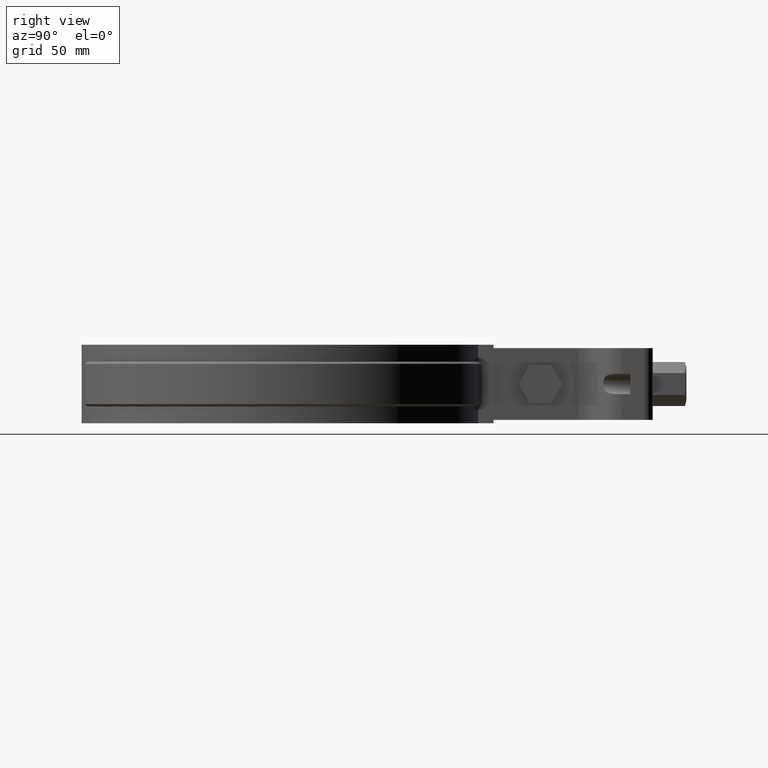
[diagram: clean part render]
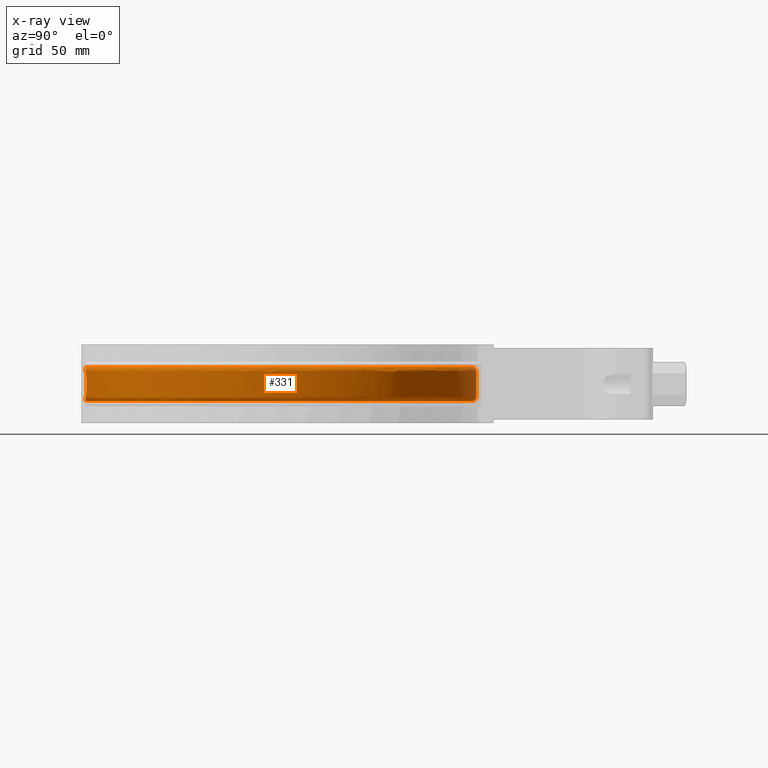
[diagram: x-ray — body ghosted, one internal face saturated and labeled with its STEP entity id]
A machine part, right view, then the same camera in x-ray: the body is ghosted and one INTERNAL B-rep face — a face not visible from any outside direction — is saturated and labeled: STEP entity #331.
In plain terms, the highlighted face is a freeform B-spline surface patch.
Its self-contained STEP definition (entity closure, byte-faithful):
#331 = ADVANCED_FACE( '', ( #527, #528 ), #529, .F. );
#527 = FACE_BOUND( '', #916, .T. );
#528 = FACE_OUTER_BOUND( '', #917, .T. );
#529 = B_SPLINE_SURFACE_WITH_KNOTS( '', 3, 3, ( ( #918, #919, #920, #921, #922, #923, #924, #925, #926, #927, #928, #929, #930, #931, #932, #933, #934 ), ( #935, #936, #937, #938, #939, #940, #941, #942, #943, #944, #945, #946, #947, #948, #949, #950, #951 ), ( #952, #953, #954, #955, #956, #957, #958, #959, #960, #961, #962, #963, #964, #965, #966, #967, #968 ), ( #969, #970, #971, #972, #973, #974, #975, #976, #977, #978, #979, #980, #981, #982, #983, #984, #985 ), ( #986, #987, #988, #989, #990, #991, #992, #993, #994, #995, #996, #997, #998, #999, #1000, #1001, #1002 ), ( #1003, #1004, #1005, #1006, #1007, #1008, #1009, #1010, #1011, #1012, #1013, #1014, #1015, #1016, #1017, #1018, #1019 ), ( #1020, #1021, #1022, #1023, #1024, #1025, #1026, #1027, #1028, #1029, #1030, #1031, #1032, #1033, #1034, #1035, #1036 ), ( #1037, #1038, #1039, #1040, #1041, #1042, #1043, #1044, #1045, #1046, #1047, #1048, #1049, #1050, #1051, #1052, #1053 ), ( #1054, #1055, #1056, #1057, #1058, #1059, #1060, #1061, #1062, #1063, #1064, #1065, #1066, #1067, #1068, #1069, #1070 ), ( #1071, #1072, #1073, #1074, #1075, #1076, #1077, #1078, #1079, #1080, #1081, #1082, #1083, #1084, #1085, #1086, #1087 ), ( #1088, #1089, #1090, #1091, #1092, #1093, #1094, #1095, #1096, #1097, #1098, #1099, #1100, #1101, #1102, #1103, #1104 ), ( #1105, #1106, #1107, #1108, #1109, #1110, #1111, #1112, #1113, #1114, #1115, #1116, #1117, #1118, #1119, #1120, #1121 ), ( #1122, #1123, #1124, #1125, #1126, #1127, #1128, #1129, #1130, #1131, #1132, #1133, #1134, #1135, #1136, #1137, #1138 ), ( #1139, #1140, #1141, #1142, #1143, #1144, #1145, #1146, #1147, #1148, #1149, #1150, #1151, #1152, #1153, #1154, #1155 ), ( #1156, #1157, #1158, #1159, #1160, #1161, #1162, #1163, #1164, #1165, #1166, #1167, #1168, #1169, #1170, #1171, #1172 ), ( #1173, #1174, #1175, #1176, #1177, #1178, #1179, #1180, #1181, #1182, #1183, #1184, #1185, #1186, #1187, #1188, #1189 ), ( #1190, #1191, #1192, #1193, #1194, #1195, #1196, #1197, #1198, #1199, #1200, #1201, #1202, #1203, #1204, #1205, #1206 ), ( #1207, #1208, #1209, #1210, #1211, #1212, #1213, #1214, #1215, #1216, #1217, #1218, #1219, #1220, #1221, #1222, #1223 ), ( #1224, #1225, #1226, #1227, #1228, #1229, #1230, #1231, #1232, #1233, #1234, #1235, #1236, #1237, #1238, #1239, #1240 ), ( #1241, #1242, #1243, #1244, #1245, #1246, #1247, #1248, #1249, #1250, #1251, #1252, #1253, #1254, #1255, #1256, #1257 ), ( #1258, #1259, #1260, #1261, #1262, #1263, #1264, #1265, #1266, #1267, #1268, #1269, #1270, #1271, #1272, #1273, #1274 ), ( #1275, #1276, #1277, #1278, #1279, #1280, #1281, #1282, #1283, #1284, #1285, #1286, #1287, #1288, #1289, #1290, #1291 ) ), .UNSPECIFIED., .F., .F., .F., ( 4, 3, 1, 1, 1, 3, 3, 1, 1, 1, 3, 4 ), ( 4, 1, 1, 1, 1, 1, 1, 1, 1, 1, 1, 1, 1, 1, 4 ), ( 0.000000000000000, 0.0909090909090909, 0.181818181818182, 0.272727272727273, 0.363636363636364, 0.454545454545455, 0.545454545454545, 0.636363636363636, 0.727272727272727, 0.818181818181818, 0.909090909090909, 1.00000000000000 ), ( 2.94823482327086, 4.00000000000000, 5.00000000000000, 6.00000000000000, 7.00000000000000, 8.00000000000000, 9.00000000000000, 10.0000000000000, 11.0000000000000, 12.0000000000000, 13.0000000000000, 14.0000000000000, 15.0000000000000, 16.0000000000000, 17.0000000000000 ), .UNSPECIFIED. );
#916 = EDGE_LOOP( '', ( #2894, #2895, #2896, #2897, #2898, #2899 ) );
#917 = EDGE_LOOP( '', ( #2900, #2901, #2902, #2903 ) );
#918 = CARTESIAN_POINT( '', ( -4.57364982241989, 84.5836677296671, -25.5000000000000 ) );
#919 = CARTESIAN_POINT( '', ( -17.6289075040332, 83.8786057571758, -25.5000000000000 ) );
#920 = CARTESIAN_POINT( '', ( -42.7949631398831, 76.4840463416153, -25.5000000000000 ) );
#921 = CARTESIAN_POINT( '', ( -71.5765301860860, 50.3150624062422, -25.5000000000000 ) );
#922 = CARTESIAN_POINT( '', ( -86.2010382005230, 14.9802997650067, -25.5000000000000 ) );
#923 = CARTESIAN_POINT( '', ( -84.3560386872710, -23.2170530818947, -25.5000000000000 ) );
#924 = CARTESIAN_POINT( '', ( -66.3958128703364, -56.9787657435621, -25.5000000000000 ) );
#925 = CARTESIAN_POINT( '', ( -35.7510476442179, -79.8551501338733, -25.5000000000000 ) );
#926 = CARTESIAN_POINT( '', ( 1.72366984717811, -87.4757758923789, -25.5000000000000 ) );
#927 = CARTESIAN_POINT( '', ( 38.8690932069321, -78.3847895444416, -25.5000000000000 ) );
#928 = CARTESIAN_POINT( '', ( 68.5888824890438, -54.3189745457491, -25.5000000000000 ) );
#929 = CARTESIAN_POINT( '', ( 85.2051688816525, -19.8758519526583, -25.5000000000000 ) );
#930 = CARTESIAN_POINT( '', ( 85.5439845515432, 18.3641744961299, -25.5000000000000 ) );
#931 = CARTESIAN_POINT( '', ( 69.5389085496657, 53.0967294981208, -25.5000000000000 ) );
#932 = CARTESIAN_POINT( '', ( 40.2539121158271, 77.6822908585602, -25.5000000000000 ) );
#933 = CARTESIAN_POINT( '', ( 15.5913724137731, 84.1869914504030, -25.5000000000000 ) );
#934 = CARTESIAN_POINT( '', ( 3.16786611963157, 84.6476903824596, -25.5000000000000 ) );
#935 = CARTESIAN_POINT( '', ( -4.55496444969863, 85.3881924763306, -24.6952621458757 ) );
#936 = CARTESIAN_POINT( '', ( -17.7369452271908, 84.6860194912804, -24.6952621458757 ) );
#937 = CARTESIAN_POINT( '', ( -43.1436016186587, 77.2397006891381, -24.6952621458756 ) );
#938 = CARTESIAN_POINT( '', ( -72.2180949023918, 50.8438436478181, -24.6952621458756 ) );
#939 = CARTESIAN_POINT( '', ( -87.0065669347491, 15.1850363934881, -24.6952621458756 ) );
#940 = CARTESIAN_POINT( '', ( -85.1720234413700, -23.3754745127051, -24.6952621458756 ) );
#941 = CARTESIAN_POINT( '', ( -67.0662632546146, -57.4700799662433, -24.6952621458756 ) );
#942 = CARTESIAN_POINT( '', ( -36.1479063010775, -80.5854951527206, -24.6952621458757 ) );
#943 = CARTESIAN_POINT( '', ( 1.67622671237653, -88.3056245388004, -24.6952621458756 ) );
#944 = CARTESIAN_POINT( '', ( 39.1801292474760, -79.1556054897633, -24.6952621458757 ) );
#945 = CARTESIAN_POINT( '', ( 69.1989697488409, -54.8834981667083, -24.6952621458757 ) );
#946 = CARTESIAN_POINT( '', ( 85.9977817595525, -20.1262382431158, -24.6952621458757 ) );
#947 = CARTESIAN_POINT( '', ( 86.3675983528669, 18.4757716958029, -24.6952621458756 ) );
#948 = CARTESIAN_POINT( '', ( 70.2365577638987, 53.5489467694972, -24.6952621458756 ) );
#949 = CARTESIAN_POINT( '', ( 40.6908980108431, 78.3888980374747, -24.6952621458757 ) );
#950 = CARTESIAN_POINT( '', ( 15.8024552811718, 84.9727924215859, -24.6952621458756 ) );
#951 = CARTESIAN_POINT( '', ( 3.25958140787082, 85.4471847975520, -24.6952621458756 ) );
#952 = CARTESIAN_POINT( '', ( -4.53627907697736, 86.1927172229942, -23.8905242917513 ) );
#953 = CARTESIAN_POINT( '', ( -17.8449829503484, 85.4934332253851, -23.8905242917513 ) );
#954 = CARTESIAN_POINT( '', ( -43.4922400974343, 77.9953550366609, -23.8905242917513 ) );
#955 = CARTESIAN_POINT( '', ( -72.8596596186976, 51.3726248893941, -23.8905242917513 ) );
#956 = CARTESIAN_POINT( '', ( -87.8120956689751, 15.3897730219694, -23.8905242917513 ) );
#957 = CARTESIAN_POINT( '', ( -85.9880081954690, -23.5338959435156, -23.8905242917513 ) );
#958 = CARTESIAN_POINT( '', ( -67.7367136388928, -57.9613941889244, -23.8905242917513 ) );
#959 = CARTESIAN_POINT( '', ( -36.5447649579371, -81.3158401715679, -23.8905242917513 ) );
#960 = CARTESIAN_POINT( '', ( 1.62878357757494, -89.1354731852219, -23.8905242917513 ) );
#961 = CARTESIAN_POINT( '', ( 39.4911652880198, -79.9264214350850, -23.8905242917513 ) );
#962 = CARTESIAN_POINT( '', ( 69.8090570086380, -55.4480217876675, -23.8905242917513 ) );
#963 = CARTESIAN_POINT( '', ( 86.7903946374526, -20.3766245335732, -23.8905242917513 ) );
#964 = CARTESIAN_POINT( '', ( 87.1912121541906, 18.5873688954759, -23.8905242917513 ) );
#965 = CARTESIAN_POINT( '', ( 70.9342069781318, 54.0011640408736, -23.8905242917513 ) );
#966 = CARTESIAN_POINT( '', ( 41.1278839058592, 79.0955052163892, -23.8905242917513 ) );
#967 = CARTESIAN_POINT( '', ( 16.0135381485704, 85.7585933927688, -23.8905242917513 ) );
#968 = CARTESIAN_POINT( '', ( 3.35129669611007, 86.2466792126443, -23.8905242917513 ) );
#969 = CARTESIAN_POINT( '', ( -4.51759370425610, 86.9972419696578, -23.0857864376269 ) );
#970 = CARTESIAN_POINT( '', ( -17.9530206735060, 86.3008469594897, -23.0857864376269 ) );
#971 = CARTESIAN_POINT( '', ( -43.8408785762100, 78.7510093841837, -23.0857864376269 ) );
#972 = CARTESIAN_POINT( '', ( -73.5012243350034, 51.9014061309700, -23.0857864376269 ) );
#973 = CARTESIAN_POINT( '', ( -88.6176244032012, 15.5945096504508, -23.0857864376269 ) );
#974 = CARTESIAN_POINT( '', ( -86.8039929495680, -23.6923173743260, -23.0857864376269 ) );
#975 = CARTESIAN_POINT( '', ( -68.4071640231710, -58.4527084116056, -23.0857864376269 ) );
#976 = CARTESIAN_POINT( '', ( -36.9416236147966, -82.0461851904152, -23.0857864376269 ) );
#977 = CARTESIAN_POINT( '', ( 1.58134044277337, -89.9653218316434, -23.0857864376269 ) );
#978 = CARTESIAN_POINT( '', ( 39.8022013285636, -80.6972373804067, -23.0857864376269 ) );
#979 = CARTESIAN_POINT( '', ( 70.4191442684350, -56.0125454086267, -23.0857864376269 ) );
#980 = CARTESIAN_POINT( '', ( 87.5830075153526, -20.6270108240307, -23.0857864376269 ) );
#981 = CARTESIAN_POINT( '', ( 88.0148259555144, 18.6989660951490, -23.0857864376269 ) );
#982 = CARTESIAN_POINT( '', ( 71.6318561923648, 54.4533813122500, -23.0857864376269 ) );
#983 = CARTESIAN_POINT( '', ( 41.5648698008752, 79.8021123953038, -23.0857864376269 ) );
#984 = CARTESIAN_POINT( '', ( 16.2246210159691, 86.5443943639516, -23.0857864376269 ) );
#985 = CARTESIAN_POINT( '', ( 3.44301198434932, 87.0461736277367, -23.0857864376269 ) );
#986 = CARTESIAN_POINT( '', ( -4.51544455110414, 87.0897767518596, -22.9932271442431 ) );
#987 = CARTESIAN_POINT( '', ( -17.9654469502905, 86.3937140270871, -22.9932271442431 ) );
#988 = CARTESIAN_POINT( '', ( -43.8809782572135, 78.8379231935573, -22.9932271442431 ) );
#989 = CARTESIAN_POINT( '', ( -73.5750157895707, 51.9622254621647, -22.9932271442431 ) );
#990 = CARTESIAN_POINT( '', ( -88.7102746619882, 15.6180580365059, -22.9932271442431 ) );
#991 = CARTESIAN_POINT( '', ( -86.8978458382625, -23.7105386815722, -22.9932271442431 ) );
#992 = CARTESIAN_POINT( '', ( -68.4842778478776, -58.5092183633218, -22.9932271442431 ) );
#993 = CARTESIAN_POINT( '', ( -36.9872694815393, -82.1301879728423, -22.9932271442431 ) );
#994 = CARTESIAN_POINT( '', ( 1.57588363095490, -90.0607693167276, -22.9932271442431 ) );
#995 = CARTESIAN_POINT( '', ( 39.8379760544350, -80.7858950455858, -22.9932271442431 ) );
#996 = CARTESIAN_POINT( '', ( 70.4893152506746, -56.0774757548091, -22.9932271442431 ) );
#997 = CARTESIAN_POINT( '', ( 87.6741722189009, -20.6558097403473, -22.9932271442431 ) );
#998 = CARTESIAN_POINT( '', ( 88.1095563215347, 18.7118017756037, -22.9932271442431 ) );
#999 = CARTESIAN_POINT( '', ( 71.7120983705701, 54.5053944130133, -22.9932271442431 ) );
#1000 = CARTESIAN_POINT( '', ( 41.6151310200462, 79.8833849001885, -22.9932271442431 ) );
#1001 = CARTESIAN_POINT( '', ( 16.2488993333761, 86.6347755759951, -22.9932271442431 ) );
#1002 = CARTESIAN_POINT( '', ( 3.45356088822952, 87.1381298315439, -22.9932271442431 ) );
#1003 = CARTESIAN_POINT( '', ( -4.51156959102015, 87.2566185551464, -22.7898759680773 ) );
#1004 = CARTESIAN_POINT( '', ( -17.9878517409813, 86.5611549466551, -22.7898759680773 ) );
#1005 = CARTESIAN_POINT( '', ( -43.9532786715082, 78.9946302861919, -22.7898759680773 ) );
#1006 = CARTESIAN_POINT( '', ( -73.7080630508732, 52.0718837619928, -22.7898759680773 ) );
#1007 = CARTESIAN_POINT( '', ( -88.8773246715435, 15.6605161814372, -22.7898759680773 ) );
#1008 = CARTESIAN_POINT( '', ( -87.0670642102181, -23.7433920118213, -22.7898759680773 ) );
#1009 = CARTESIAN_POINT( '', ( -68.6233153996635, -58.6111067778579, -22.7898759680773 ) );
#1010 = CARTESIAN_POINT( '', ( -37.0695697640788, -82.2816464338422, -22.7898759680773 ) );
#1011 = CARTESIAN_POINT( '', ( 1.56604490542569, -90.2328627733904, -22.7898759680773 ) );
#1012 = CARTESIAN_POINT( '', ( 39.9024785002662, -80.9457463402204, -22.7898759680773 ) );
#1013 = CARTESIAN_POINT( '', ( 70.6158347381223, -56.1945462853421, -22.7898759680773 ) );
#1014 = CARTESIAN_POINT( '', ( 87.8385437468192, -20.7077346816142, -22.7898759680773 ) );
#1015 = CARTESIAN_POINT( '', ( 88.2803568001957, 18.7349447281510, -22.7898759680773 ) );
#1016 = CARTESIAN_POINT( '', ( 71.8567763975009, 54.5991749279655, -22.7898759680773 ) );
#1017 = CARTESIAN_POINT( '', ( 41.7057528623671, 80.0299206238370, -22.7898759680773 ) );
#1018 = CARTESIAN_POINT( '', ( 16.2926735570849, 86.7977344552594, -22.7898759680773 ) );
#1019 = CARTESIAN_POINT( '', ( 3.47258074329584, 87.3039284480376, -22.7898759680773 ) );
#1020 = CARTESIAN_POINT( '', ( -4.50725055836836, 87.4425805213247, -22.4418734431229 ) );
#1021 = CARTESIAN_POINT( '', ( -18.0128241330713, 86.7477846881715, -22.4418734431229 ) );
#1022 = CARTESIAN_POINT( '', ( -44.0338647532507, 79.1692960982744, -22.4418734431229 ) );
#1023 = CARTESIAN_POINT( '', ( -73.8563576018731, 52.1941089636034, -22.4418734431229 ) );
#1024 = CARTESIAN_POINT( '', ( -89.0635187045437, 15.7078400532497, -22.4418734431229 ) );
#1025 = CARTESIAN_POINT( '', ( -87.2556751011485, -23.7800103518792, -22.4418734431229 ) );
#1026 = CARTESIAN_POINT( '', ( -68.7782867317480, -58.7246716610265, -22.4418734431229 ) );
#1027 = CARTESIAN_POINT( '', ( -37.1613017044952, -82.4504621182032, -22.4418734431229 ) );
#1028 = CARTESIAN_POINT( '', ( 1.55507865651172, -90.4246782353248, -22.4418734431229 ) );
#1029 = CARTESIAN_POINT( '', ( 39.9743729620484, -81.1239166815903, -22.4418734431230 ) );
#1030 = CARTESIAN_POINT( '', ( 70.7568534287750, -56.3250331633941, -22.4418734431229 ) );
#1031 = CARTESIAN_POINT( '', ( 88.0217523427061, -20.7656102498557, -22.4418734431229 ) );
#1032 = CARTESIAN_POINT( '', ( 88.4707311081346, 18.7607398758544, -22.4418734431229 ) );
#1033 = CARTESIAN_POINT( '', ( 72.0180346062999, 54.7037027417756, -22.4418734431229 ) );
#1034 = CARTESIAN_POINT( '', ( 41.8067600179162, 80.1932494224247, -22.4418734431229 ) );
#1035 = CARTESIAN_POINT( '', ( 16.3414643310304, 86.9793685121755, -22.4418734431229 ) );
#1036 = CARTESIAN_POINT( '', ( 3.49378028426746, 87.4887276776395, -22.4418734431229 ) );
#1037 = CARTESIAN_POINT( '', ( -4.50459091119341, 87.5570953346794, -22.0642686993349 ) );
#1038 = CARTESIAN_POINT( '', ( -18.0282020561918, 86.8627107155492, -22.0642686993349 ) );
#1039 = CARTESIAN_POINT( '', ( -44.0834894173656, 79.2768547742830, -22.0642686993349 ) );
#1040 = CARTESIAN_POINT( '', ( -73.9476769354890, 52.2693748711291, -22.0642686993349 ) );
#1041 = CARTESIAN_POINT( '', ( -89.1781764239418, 15.7369819496235, -22.0642686993349 ) );
#1042 = CARTESIAN_POINT( '', ( -87.3718211143115, -23.8025598143486, -22.0642686993349 ) );
#1043 = CARTESIAN_POINT( '', ( -68.8737176068549, -58.7946045707875, -22.0642686993349 ) );
#1044 = CARTESIAN_POINT( '', ( -37.2177899544924, -82.5544183033482, -22.0642686993349 ) );
#1045 = CARTESIAN_POINT( '', ( 1.54832567377340, -90.5427976135686, -22.0642686993349 ) );
#1046 = CARTESIAN_POINT( '', ( 40.0186453530186, -81.2336334360785, -22.0642686993349 ) );
#1047 = CARTESIAN_POINT( '', ( 70.8436923097112, -56.4053865861528, -22.0642686993349 ) );
#1048 = CARTESIAN_POINT( '', ( 88.1345716390071, -20.8012498488081, -22.0642686993349 ) );
#1049 = CARTESIAN_POINT( '', ( 88.5879630281297, 18.7766244493799, -22.0642686993349 ) );
#1050 = CARTESIAN_POINT( '', ( 72.1173369209724, 54.7680706517029, -22.0642686993349 ) );
#1051 = CARTESIAN_POINT( '', ( 41.8689599171909, 80.2938267999934, -22.0642686993349 ) );
#1052 = CARTESIAN_POINT( '', ( 16.3715095412775, 87.0912182121657, -22.0642686993349 ) );
#1053 = CARTESIAN_POINT( '', ( 3.50683489714052, 87.6025264813458, -22.0642686993349 ) );
#1054 = CARTESIAN_POINT( '', ( -4.50399220922760, 87.5828732816625, -21.8024714832809 ) );
#1055 = CARTESIAN_POINT( '', ( -18.0316637156513, 86.8885812291878, -21.8024714832809 ) );
#1056 = CARTESIAN_POINT( '', ( -44.0946602163490, 79.3010668545065, -21.8024714832808 ) );
#1057 = CARTESIAN_POINT( '', ( -73.9682334457911, 52.2863176623453, -21.8024714832808 ) );
#1058 = CARTESIAN_POINT( '', ( -89.2039865399020, 15.7435419590905, -21.8024714832808 ) );
#1059 = CARTESIAN_POINT( '', ( -87.3979662538083, -23.8076358288048, -21.8024714832808 ) );
#1060 = CARTESIAN_POINT( '', ( -68.8951996489330, -58.8103468733541, -21.8024714832808 ) );
#1061 = CARTESIAN_POINT( '', ( -37.2305057863655, -82.5778194420369, -21.8024714832809 ) );
#1062 = CARTESIAN_POINT( '', ( 1.54680553829131, -90.5693869689616, -21.8024714832808 ) );
#1063 = CARTESIAN_POINT( '', ( 40.0286113243529, -81.2583313122528, -21.8024714832809 ) );
#1064 = CARTESIAN_POINT( '', ( 70.8632402441946, -56.4234746064805, -21.8024714832808 ) );
#1065 = CARTESIAN_POINT( '', ( 88.1599679152924, -20.8092725287163, -21.8024714832809 ) );
#1066 = CARTESIAN_POINT( '', ( 88.6143526115367, 18.7802001587767, -21.8024714832808 ) );
#1067 = CARTESIAN_POINT( '', ( 72.1396904464940, 54.7825602406120, -21.8024714832808 ) );
#1068 = CARTESIAN_POINT( '', ( 41.8829614743596, 80.3164673495495, -21.8024714832809 ) );
#1069 = CARTESIAN_POINT( '', ( 16.3782728919232, 87.1163962267121, -21.8024714832808 ) );
#1070 = CARTESIAN_POINT( '', ( 3.50977356602246, 87.6281432504148, -21.8024714832808 ) );
#1071 = CARTESIAN_POINT( '', ( -4.50399220922760, 87.5828732816625, -21.6715728752538 ) );
#1072 = CARTESIAN_POINT( '', ( -18.0316637156513, 86.8885812291878, -21.6715728752538 ) );
#1073 = CARTESIAN_POINT( '', ( -44.0946602163490, 79.3010668545065, -21.6715728752538 ) );
#1074 = CARTESIAN_POINT( '', ( -73.9682334457911, 52.2863176623453, -21.6715728752538 ) );
#1075 = CARTESIAN_POINT( '', ( -89.2039865399020, 15.7435419590905, -21.6715728752538 ) );
#1076 = CARTESIAN_POINT( '', ( -87.3979662538083, -23.8076358288048, -21.6715728752538 ) );
#1077 = CARTESIAN_POINT( '', ( -68.8951996489330, -58.8103468733541, -21.6715728752538 ) );
#1078 = CARTESIAN_POINT( '', ( -37.2305057863655, -82.5778194420369, -21.6715728752538 ) );
#1079 = CARTESIAN_POINT( '', ( 1.54680553829131, -90.5693869689616, -21.6715728752538 ) );
#1080 = CARTESIAN_POINT( '', ( 40.0286113243529, -81.2583313122528, -21.6715728752538 ) );
#1081 = CARTESIAN_POINT( '', ( 70.8632402441946, -56.4234746064805, -21.6715728752538 ) );
#1082 = CARTESIAN_POINT( '', ( 88.1599679152924, -20.8092725287163, -21.6715728752538 ) );
#1083 = CARTESIAN_POINT( '', ( 88.6143526115367, 18.7802001587767, -21.6715728752538 ) );
#1084 = CARTESIAN_POINT( '', ( 72.1396904464940, 54.7825602406120, -21.6715728752538 ) );
#1085 = CARTESIAN_POINT( '', ( 41.8829614743596, 80.3164673495495, -21.6715728752538 ) );
#1086 = CARTESIAN_POINT( '', ( 16.3782728919232, 87.1163962267121, -21.6715728752538 ) );
#1087 = CARTESIAN_POINT( '', ( 3.50977356602246, 87.6281432504148, -21.6715728752538 ) );
#1088 = CARTESIAN_POINT( '', ( -4.50399220922760, 87.5828732816625, -17.8905242917513 ) );
#1089 = CARTESIAN_POINT( '', ( -18.0316637156513, 86.8885812291878, -17.8905242917513 ) );
#1090 = CARTESIAN_POINT( '', ( -44.0946602163490, 79.3010668545065, -17.8905242917513 ) );
#1091 = CARTESIAN_POINT( '', ( -73.9682334457911, 52.2863176623453, -17.8905242917513 ) );
#1092 = CARTESIAN_POINT( '', ( -89.2039865399020, 15.7435419590905, -17.8905242917513 ) );
#1093 = CARTESIAN_POINT( '', ( -87.3979662538083, -23.8076358288048, -17.8905242917513 ) );
#1094 = CARTESIAN_POINT( '', ( -68.8951996489330, -58.8103468733541, -17.8905242917513 ) );
#1095 = CARTESIAN_POINT( '', ( -37.2305057863655, -82.5778194420369, -17.8905242917513 ) );
#1096 = CARTESIAN_POINT( '', ( 1.54680553829131, -90.5693869689616, -17.8905242917513 ) );
#1097 = CARTESIAN_POINT( '', ( 40.0286113243529, -81.2583313122528, -17.8905242917513 ) );
#1098 = CARTESIAN_POINT( '', ( 70.8632402441946, -56.4234746064805, -17.8905242917513 ) );
#1099 = CARTESIAN_POINT( '', ( 88.1599679152923, -20.8092725287163, -17.8905242917513 ) );
#1100 = CARTESIAN_POINT( '', ( 88.6143526115367, 18.7802001587767, -17.8905242917513 ) );
#1101 = CARTESIAN_POINT( '', ( 72.1396904464940, 54.7825602406120, -17.8905242917513 ) );
#1102 = CARTESIAN_POINT( '', ( 41.8829614743596, 80.3164673495494, -17.8905242917513 ) );
#1103 = CARTESIAN_POINT( '', ( 16.3782728919232, 87.1163962267121, -17.8905242917513 ) );
#1104 = CARTESIAN_POINT( '', ( 3.50977356602246, 87.6281432504148, -17.8905242917513 ) );
#1105 = CARTESIAN_POINT( '', ( -4.50399220922760, 87.5828732816625, -14.1094757082487 ) );
#1106 = CARTESIAN_POINT( '', ( -18.0316637156513, 86.8885812291878, -14.1094757082487 ) );
#1107 = CARTESIAN_POINT( '', ( -44.0946602163490, 79.3010668545065, -14.1094757082487 ) );
#1108 = CARTESIAN_POINT( '', ( -73.9682334457911, 52.2863176623453, -14.1094757082487 ) );
#1109 = CARTESIAN_POINT( '', ( -89.2039865399020, 15.7435419590905, -14.1094757082487 ) );
#1110 = CARTESIAN_POINT( '', ( -87.3979662538083, -23.8076358288048, -14.1094757082487 ) );
#1111 = CARTESIAN_POINT( '', ( -68.8951996489330, -58.8103468733541, -14.1094757082487 ) );
#1112 = CARTESIAN_POINT( '', ( -37.2305057863655, -82.5778194420369, -14.1094757082487 ) );
#1113 = CARTESIAN_POINT( '', ( 1.54680553829131, -90.5693869689616, -14.1094757082487 ) );
#1114 = CARTESIAN_POINT( '', ( 40.0286113243529, -81.2583313122528, -14.1094757082487 ) );
#1115 = CARTESIAN_POINT( '', ( 70.8632402441946, -56.4234746064805, -14.1094757082487 ) );
#1116 = CARTESIAN_POINT( '', ( 88.1599679152923, -20.8092725287163, -14.1094757082487 ) );
#1117 = CARTESIAN_POINT( '', ( 88.6143526115367, 18.7802001587767, -14.1094757082487 ) );
#1118 = CARTESIAN_POINT( '', ( 72.1396904464940, 54.7825602406120, -14.1094757082487 ) );
#1119 = CARTESIAN_POINT( '', ( 41.8829614743596, 80.3164673495494, -14.1094757082487 ) );
#1120 = CARTESIAN_POINT( '', ( 16.3782728919232, 87.1163962267121, -14.1094757082487 ) );
#1121 = CARTESIAN_POINT( '', ( 3.50977356602246, 87.6281432504148, -14.1094757082487 ) );
#1122 = CARTESIAN_POINT( '', ( -4.50399220922760, 87.5828732816625, -10.3284271247462 ) );
#1123 = CARTESIAN_POINT( '', ( -18.0316637156513, 86.8885812291878, -10.3284271247462 ) );
#1124 = CARTESIAN_POINT( '', ( -44.0946602163490, 79.3010668545065, -10.3284271247462 ) );
#1125 = CARTESIAN_POINT( '', ( -73.9682334457911, 52.2863176623453, -10.3284271247462 ) );
#1126 = CARTESIAN_POINT( '', ( -89.2039865399020, 15.7435419590905, -10.3284271247462 ) );
#1127 = CARTESIAN_POINT( '', ( -87.3979662538083, -23.8076358288048, -10.3284271247462 ) );
#1128 = CARTESIAN_POINT( '', ( -68.8951996489330, -58.8103468733541, -10.3284271247462 ) );
#1129 = CARTESIAN_POINT( '', ( -37.2305057863655, -82.5778194420369, -10.3284271247462 ) );
#1130 = CARTESIAN_POINT( '', ( 1.54680553829131, -90.5693869689616, -10.3284271247462 ) );
#1131 = CARTESIAN_POINT( '', ( 40.0286113243529, -81.2583313122528, -10.3284271247462 ) );
#1132 = CARTESIAN_POINT( '', ( 70.8632402441946, -56.4234746064805, -10.3284271247462 ) );
#1133 = CARTESIAN_POINT( '', ( 88.1599679152923, -20.8092725287163, -10.3284271247462 ) );
#1134 = CARTESIAN_POINT( '', ( 88.6143526115367, 18.7802001587767, -10.3284271247462 ) );
#1135 = CARTESIAN_POINT( '', ( 72.1396904464940, 54.7825602406120, -10.3284271247462 ) );
#1136 = CARTESIAN_POINT( '', ( 41.8829614743596, 80.3164673495494, -10.3284271247462 ) );
#1137 = CARTESIAN_POINT( '', ( 16.3782728919232, 87.1163962267121, -10.3284271247462 ) );
#1138 = CARTESIAN_POINT( '', ( 3.50977356602246, 87.6281432504148, -10.3284271247462 ) );
#1139 = CARTESIAN_POINT( '', ( -4.50399220922760, 87.5828732816625, -10.1975285167192 ) );
#1140 = CARTESIAN_POINT( '', ( -18.0316637156513, 86.8885812291878, -10.1975285167192 ) );
#1141 = CARTESIAN_POINT( '', ( -44.0946602163490, 79.3010668545065, -10.1975285167192 ) );
#1142 = CARTESIAN_POINT( '', ( -73.9682334457911, 52.2863176623453, -10.1975285167192 ) );
#1143 = CARTESIAN_POINT( '', ( -89.2039865399020, 15.7435419590905, -10.1975285167191 ) );
#1144 = CARTESIAN_POINT( '', ( -87.3979662538083, -23.8076358288048, -10.1975285167192 ) );
#1145 = CARTESIAN_POINT( '', ( -68.8951996489330, -58.8103468733541, -10.1975285167192 ) );
#1146 = CARTESIAN_POINT( '', ( -37.2305057863655, -82.5778194420369, -10.1975285167192 ) );
#1147 = CARTESIAN_POINT( '', ( 1.54680553829131, -90.5693869689616, -10.1975285167191 ) );
#1148 = CARTESIAN_POINT( '', ( 40.0286113243529, -81.2583313122528, -10.1975285167192 ) );
#1149 = CARTESIAN_POINT( '', ( 70.8632402441946, -56.4234746064805, -10.1975285167192 ) );
#1150 = CARTESIAN_POINT( '', ( 88.1599679152923, -20.8092725287163, -10.1975285167192 ) );
#1151 = CARTESIAN_POINT( '', ( 88.6143526115367, 18.7802001587767, -10.1975285167192 ) );
#1152 = CARTESIAN_POINT( '', ( 72.1396904464940, 54.7825602406120, -10.1975285167191 ) );
#1153 = CARTESIAN_POINT( '', ( 41.8829614743596, 80.3164673495494, -10.1975285167192 ) );
#1154 = CARTESIAN_POINT( '', ( 16.3782728919232, 87.1163962267121, -10.1975285167192 ) );
#1155 = CARTESIAN_POINT( '', ( 3.50977356602246, 87.6281432504148, -10.1975285167192 ) );
#1156 = CARTESIAN_POINT( '', ( -4.50459091119341, 87.5570953346794, -9.93573130066509 ) );
#1157 = CARTESIAN_POINT( '', ( -18.0282020561918, 86.8627107155492, -9.93573130066509 ) );
#1158 = CARTESIAN_POINT( '', ( -44.0834894173656, 79.2768547742830, -9.93573130066508 ) );
#1159 = CARTESIAN_POINT( '', ( -73.9476769354890, 52.2693748711291, -9.93573130066508 ) );
#1160 = CARTESIAN_POINT( '', ( -89.1781764239418, 15.7369819496235, -9.93573130066508 ) );
#1161 = CARTESIAN_POINT( '', ( -87.3718211143115, -23.8025598143486, -9.93573130066508 ) );
#1162 = CARTESIAN_POINT( '', ( -68.8737176068549, -58.7946045707875, -9.93573130066508 ) );
#1163 = CARTESIAN_POINT( '', ( -37.2177899544924, -82.5544183033482, -9.93573130066509 ) );
#1164 = CARTESIAN_POINT( '', ( 1.54832567377340, -90.5427976135686, -9.93573130066508 ) );
#1165 = CARTESIAN_POINT( '', ( 40.0186453530186, -81.2336334360785, -9.93573130066509 ) );
#1166 = CARTESIAN_POINT( '', ( 70.8436923097112, -56.4053865861528, -9.93573130066508 ) );
#1167 = CARTESIAN_POINT( '', ( 88.1345716390071, -20.8012498488081, -9.93573130066509 ) );
#1168 = CARTESIAN_POINT( '', ( 88.5879630281297, 18.7766244493799, -9.93573130066508 ) );
#1169 = CARTESIAN_POINT( '', ( 72.1173369209724, 54.7680706517029, -9.93573130066508 ) );
#1170 = CARTESIAN_POINT( '', ( 41.8689599171908, 80.2938267999934, -9.93573130066509 ) );
#1171 = CARTESIAN_POINT( '', ( 16.3715095412775, 87.0912182121657, -9.93573130066508 ) );
#1172 = CARTESIAN_POINT( '', ( 3.50683489714052, 87.6025264813458, -9.93573130066508 ) );
#1173 = CARTESIAN_POINT( '', ( -4.50725055836836, 87.4425805213247, -9.55812655687707 ) );
#1174 = CARTESIAN_POINT( '', ( -18.0128241330713, 86.7477846881715, -9.55812655687707 ) );
#1175 = CARTESIAN_POINT( '', ( -44.0338647532507, 79.1692960982744, -9.55812655687706 ) );
#1176 = CARTESIAN_POINT( '', ( -73.8563576018731, 52.1941089636034, -9.55812655687706 ) );
#1177 = CARTESIAN_POINT( '', ( -89.0635187045437, 15.7078400532497, -9.55812655687706 ) );
#1178 = CARTESIAN_POINT( '', ( -87.2556751011485, -23.7800103518792, -9.55812655687706 ) );
#1179 = CARTESIAN_POINT( '', ( -68.7782867317480, -58.7246716610265, -9.55812655687706 ) );
#1180 = CARTESIAN_POINT( '', ( -37.1613017044952, -82.4504621182032, -9.55812655687707 ) );
#1181 = CARTESIAN_POINT( '', ( 1.55507865651172, -90.4246782353248, -9.55812655687706 ) );
#1182 = CARTESIAN_POINT( '', ( 39.9743729620484, -81.1239166815903, -9.55812655687707 ) );
#1183 = CARTESIAN_POINT( '', ( 70.7568534287750, -56.3250331633941, -9.55812655687706 ) );
#1184 = CARTESIAN_POINT( '', ( 88.0217523427061, -20.7656102498557, -9.55812655687707 ) );
#1185 = CARTESIAN_POINT( '', ( 88.4707311081346, 18.7607398758544, -9.55812655687706 ) );
#1186 = CARTESIAN_POINT( '', ( 72.0180346062999, 54.7037027417756, -9.55812655687706 ) );
#1187 = CARTESIAN_POINT( '', ( 41.8067600179162, 80.1932494224247, -9.55812655687707 ) );
#1188 = CARTESIAN_POINT( '', ( 16.3414643310304, 86.9793685121755, -9.55812655687706 ) );
#1189 = CARTESIAN_POINT( '', ( 3.49378028426746, 87.4887276776395, -9.55812655687706 ) );
#1190 = CARTESIAN_POINT( '', ( -4.51156959102015, 87.2566185551464, -9.21012403192272 ) );
#1191 = CARTESIAN_POINT( '', ( -17.9878517409813, 86.5611549466551, -9.21012403192272 ) );
#1192 = CARTESIAN_POINT( '', ( -43.9532786715082, 78.9946302861919, -9.21012403192272 ) );
#1193 = CARTESIAN_POINT( '', ( -73.7080630508732, 52.0718837619928, -9.21012403192272 ) );
#1194 = CARTESIAN_POINT( '', ( -88.8773246715434, 15.6605161814372, -9.21012403192271 ) );
#1195 = CARTESIAN_POINT( '', ( -87.0670642102181, -23.7433920118213, -9.21012403192272 ) );
#1196 = CARTESIAN_POINT( '', ( -68.6233153996635, -58.6111067778579, -9.21012403192271 ) );
#1197 = CARTESIAN_POINT( '', ( -37.0695697640788, -82.2816464338423, -9.21012403192272 ) );
#1198 = CARTESIAN_POINT( '', ( 1.56604490542569, -90.2328627733904, -9.21012403192271 ) );
#1199 = CARTESIAN_POINT( '', ( 39.9024785002662, -80.9457463402204, -9.21012403192272 ) );
#1200 = CARTESIAN_POINT( '', ( 70.6158347381223, -56.1945462853421, -9.21012403192272 ) );
#1201 = CARTESIAN_POINT( '', ( 87.8385437468192, -20.7077346816142, -9.21012403192272 ) );
#1202 = CARTESIAN_POINT( '', ( 88.2803568001957, 18.7349447281510, -9.21012403192272 ) );
#1203 = CARTESIAN_POINT( '', ( 71.8567763975008, 54.5991749279655, -9.21012403192271 ) );
#1204 = CARTESIAN_POINT( '', ( 41.7057528623671, 80.0299206238370, -9.21012403192272 ) );
#1205 = CARTESIAN_POINT( '', ( 16.2926735570849, 86.7977344552593, -9.21012403192272 ) );
#1206 = CARTESIAN_POINT( '', ( 3.47258074329583, 87.3039284480376, -9.21012403192272 ) );
#1207 = CARTESIAN_POINT( '', ( -4.51544455110414, 87.0897767518596, -9.00677285575689 ) );
#1208 = CARTESIAN_POINT( '', ( -17.9654469502905, 86.3937140270870, -9.00677285575689 ) );
#1209 = CARTESIAN_POINT( '', ( -43.8809782572135, 78.8379231935573, -9.00677285575689 ) );
#1210 = CARTESIAN_POINT( '', ( -73.5750157895707, 51.9622254621647, -9.00677285575689 ) );
#1211 = CARTESIAN_POINT( '', ( -88.7102746619882, 15.6180580365059, -9.00677285575689 ) );
#1212 = CARTESIAN_POINT( '', ( -86.8978458382625, -23.7105386815722, -9.00677285575689 ) );
#1213 = CARTESIAN_POINT( '', ( -68.4842778478776, -58.5092183633218, -9.00677285575689 ) );
#1214 = CARTESIAN_POINT( '', ( -36.9872694815393, -82.1301879728423, -9.00677285575689 ) );
#1215 = CARTESIAN_POINT( '', ( 1.57588363095490, -90.0607693167276, -9.00677285575689 ) );
#1216 = CARTESIAN_POINT( '', ( 39.8379760544350, -80.7858950455858, -9.00677285575689 ) );
#1217 = CARTESIAN_POINT( '', ( 70.4893152506746, -56.0774757548091, -9.00677285575689 ) );
#1218 = CARTESIAN_POINT( '', ( 87.6741722189009, -20.6558097403473, -9.00677285575689 ) );
#1219 = CARTESIAN_POINT( '', ( 88.1095563215347, 18.7118017756037, -9.00677285575689 ) );
#1220 = CARTESIAN_POINT( '', ( 71.7120983705701, 54.5053944130133, -9.00677285575689 ) );
#1221 = CARTESIAN_POINT( '', ( 41.6151310200462, 79.8833849001885, -9.00677285575689 ) );
#1222 = CARTESIAN_POINT( '', ( 16.2488993333761, 86.6347755759951, -9.00677285575689 ) );
#1223 = CARTESIAN_POINT( '', ( 3.45356088822952, 87.1381298315439, -9.00677285575689 ) );
#1224 = CARTESIAN_POINT( '', ( -4.51759370425610, 86.9972419696578, -8.91421356237310 ) );
#1225 = CARTESIAN_POINT( '', ( -17.9530206735060, 86.3008469594897, -8.91421356237310 ) );
#1226 = CARTESIAN_POINT( '', ( -43.8408785762100, 78.7510093841837, -8.91421356237309 ) );
#1227 = CARTESIAN_POINT( '', ( -73.5012243350034, 51.9014061309700, -8.91421356237310 ) );
#1228 = CARTESIAN_POINT( '', ( -88.6176244032012, 15.5945096504508, -8.91421356237309 ) );
#1229 = CARTESIAN_POINT( '', ( -86.8039929495680, -23.6923173743260, -8.91421356237309 ) );
#1230 = CARTESIAN_POINT( '', ( -68.4071640231710, -58.4527084116056, -8.91421356237309 ) );
#1231 = CARTESIAN_POINT( '', ( -36.9416236147966, -82.0461851904152, -8.91421356237310 ) );
#1232 = CARTESIAN_POINT( '', ( 1.58134044277335, -89.9653218316434, -8.91421356237309 ) );
#1233 = CARTESIAN_POINT( '', ( 39.8022013285636, -80.6972373804067, -8.91421356237310 ) );
#1234 = CARTESIAN_POINT( '', ( 70.4191442684350, -56.0125454086266, -8.91421356237310 ) );
#1235 = CARTESIAN_POINT( '', ( 87.5830075153526, -20.6270108240307, -8.91421356237310 ) );
#1236 = CARTESIAN_POINT( '', ( 88.0148259555143, 18.6989660951490, -8.91421356237309 ) );
#1237 = CARTESIAN_POINT( '', ( 71.6318561923648, 54.4533813122500, -8.91421356237309 ) );
#1238 = CARTESIAN_POINT( '', ( 41.5648698008752, 79.8021123953037, -8.91421356237310 ) );
#1239 = CARTESIAN_POINT( '', ( 16.2246210159691, 86.5443943639516, -8.91421356237309 ) );
#1240 = CARTESIAN_POINT( '', ( 3.44301198434932, 87.0461736277367, -8.91421356237309 ) );
#1241 = CARTESIAN_POINT( '', ( -4.53627907697736, 86.1927172229942, -8.10947570824873 ) );
#1242 = CARTESIAN_POINT( '', ( -17.8449829503484, 85.4934332253851, -8.10947570824873 ) );
#1243 = CARTESIAN_POINT( '', ( -43.4922400974343, 77.9953550366609, -8.10947570824873 ) );
#1244 = CARTESIAN_POINT( '', ( -72.8596596186976, 51.3726248893941, -8.10947570824873 ) );
#1245 = CARTESIAN_POINT( '', ( -87.8120956689751, 15.3897730219694, -8.10947570824873 ) );
#1246 = CARTESIAN_POINT( '', ( -85.9880081954690, -23.5338959435156, -8.10947570824873 ) );
#1247 = CARTESIAN_POINT( '', ( -67.7367136388929, -57.9613941889244, -8.10947570824873 ) );
#1248 = CARTESIAN_POINT( '', ( -36.5447649579370, -81.3158401715679, -8.10947570824873 ) );
#1249 = CARTESIAN_POINT( '', ( 1.62878357757494, -89.1354731852219, -8.10947570824873 ) );
#1250 = CARTESIAN_POINT( '', ( 39.4911652880198, -79.9264214350850, -8.10947570824873 ) );
#1251 = CARTESIAN_POINT( '', ( 69.8090570086379, -55.4480217876674, -8.10947570824873 ) );
#1252 = CARTESIAN_POINT( '', ( 86.7903946374526, -20.3766245335732, -8.10947570824873 ) );
#1253 = CARTESIAN_POINT( '', ( 87.1912121541906, 18.5873688954759, -8.10947570824873 ) );
#1254 = CARTESIAN_POINT( '', ( 70.9342069781318, 54.0011640408736, -8.10947570824873 ) );
#1255 = CARTESIAN_POINT( '', ( 41.1278839058592, 79.0955052163892, -8.10947570824873 ) );
#1256 = CARTESIAN_POINT( '', ( 16.0135381485704, 85.7585933927688, -8.10947570824873 ) );
#1257 = CARTESIAN_POINT( '', ( 3.35129669611007, 86.2466792126443, -8.10947570824873 ) );
#1258 = CARTESIAN_POINT( '', ( -4.55496444969862, 85.3881924763306, -7.30473785412437 ) );
#1259 = CARTESIAN_POINT( '', ( -17.7369452271908, 84.6860194912804, -7.30473785412437 ) );
#1260 = CARTESIAN_POINT( '', ( -43.1436016186587, 77.2397006891381, -7.30473785412437 ) );
#1261 = CARTESIAN_POINT( '', ( -72.2180949023918, 50.8438436478181, -7.30473785412437 ) );
#1262 = CARTESIAN_POINT( '', ( -87.0065669347491, 15.1850363934881, -7.30473785412436 ) );
#1263 = CARTESIAN_POINT( '', ( -85.1720234413700, -23.3754745127051, -7.30473785412437 ) );
#1264 = CARTESIAN_POINT( '', ( -67.0662632546146, -57.4700799662433, -7.30473785412437 ) );
#1265 = CARTESIAN_POINT( '', ( -36.1479063010775, -80.5854951527206, -7.30473785412437 ) );
#1266 = CARTESIAN_POINT( '', ( 1.67622671237653, -88.3056245388004, -7.30473785412436 ) );
#1267 = CARTESIAN_POINT( '', ( 39.1801292474759, -79.1556054897633, -7.30473785412437 ) );
#1268 = CARTESIAN_POINT( '', ( 69.1989697488409, -54.8834981667082, -7.30473785412437 ) );
#1269 = CARTESIAN_POINT( '', ( 85.9977817595525, -20.1262382431158, -7.30473785412437 ) );
#1270 = CARTESIAN_POINT( '', ( 86.3675983528669, 18.4757716958029, -7.30473785412437 ) );
#1271 = CARTESIAN_POINT( '', ( 70.2365577638987, 53.5489467694972, -7.30473785412437 ) );
#1272 = CARTESIAN_POINT( '', ( 40.6908980108431, 78.3888980374747, -7.30473785412437 ) );
#1273 = CARTESIAN_POINT( '', ( 15.8024552811718, 84.9727924215859, -7.30473785412437 ) );
#1274 = CARTESIAN_POINT( '', ( 3.25958140787082, 85.4471847975519, -7.30473785412437 ) );
#1275 = CARTESIAN_POINT( '', ( -4.57364982241989, 84.5836677296671, -6.50000000000000 ) );
#1276 = CARTESIAN_POINT( '', ( -17.6289075040332, 83.8786057571758, -6.50000000000000 ) );
#1277 = CARTESIAN_POINT( '', ( -42.7949631398831, 76.4840463416153, -6.50000000000000 ) );
#1278 = CARTESIAN_POINT( '', ( -71.5765301860860, 50.3150624062422, -6.50000000000000 ) );
#1279 = CARTESIAN_POINT( '', ( -86.2010382005230, 14.9802997650067, -6.50000000000000 ) );
#1280 = CARTESIAN_POINT( '', ( -84.3560386872710, -23.2170530818947, -6.50000000000000 ) );
#1281 = CARTESIAN_POINT( '', ( -66.3958128703364, -56.9787657435621, -6.50000000000000 ) );
#1282 = CARTESIAN_POINT( '', ( -35.7510476442179, -79.8551501338733, -6.50000000000000 ) );
#1283 = CARTESIAN_POINT( '', ( 1.72366984717811, -87.4757758923789, -6.50000000000000 ) );
#1284 = CARTESIAN_POINT( '', ( 38.8690932069321, -78.3847895444416, -6.50000000000001 ) );
#1285 = CARTESIAN_POINT( '', ( 68.5888824890438, -54.3189745457490, -6.50000000000000 ) );
#1286 = CARTESIAN_POINT( '', ( 85.2051688816525, -19.8758519526583, -6.50000000000000 ) );
#1287 = CARTESIAN_POINT( '', ( 85.5439845515432, 18.3641744961299, -6.50000000000000 ) );
#1288 = CARTESIAN_POINT( '', ( 69.5389085496657, 53.0967294981207, -6.50000000000000 ) );
#1289 = CARTESIAN_POINT( '', ( 40.2539121158271, 77.6822908585602, -6.50000000000000 ) );
#1290 = CARTESIAN_POINT( '', ( 15.5913724137731, 84.1869914504030, -6.50000000000000 ) );
#1291 = CARTESIAN_POINT( '', ( 3.16786611963157, 84.6476903824596, -6.50000000000000 ) );
#2894 = ORIENTED_EDGE( '', *, *, #5021, .T. );
#2895 = ORIENTED_EDGE( '', *, *, #4996, .T. );
#2896 = ORIENTED_EDGE( '', *, *, #4983, .T. );
#2897 = ORIENTED_EDGE( '', *, *, #4986, .T. );
#2898 = ORIENTED_EDGE( '', *, *, #5006, .T. );
#2899 = ORIENTED_EDGE( '', *, *, #5020, .T. );
#2900 = ORIENTED_EDGE( '', *, *, #5012, .T. );
#2901 = ORIENTED_EDGE( '', *, *, #5022, .T. );
#2902 = ORIENTED_EDGE( '', *, *, #4997, .T. );
#2903 = ORIENTED_EDGE( '', *, *, #5001, .T. );
#4983 = EDGE_CURVE( '', #5465, #5471, #5473, .T. );
#4986 = EDGE_CURVE( '', #5471, #5476, #5478, .T. );
#4996 = EDGE_CURVE( '', #5490, #5465, #5493, .T. );
#4997 = EDGE_CURVE( '', #5494, #5495, #5496, .T. );
#5001 = EDGE_CURVE( '', #5495, #5502, #5503, .T. );
#5006 = EDGE_CURVE( '', #5476, #5508, #5510, .T. );
#5012 = EDGE_CURVE( '', #5502, #5519, #5520, .T. );
#5020 = EDGE_CURVE( '', #5508, #5531, #5533, .T. );
#5021 = EDGE_CURVE( '', #5531, #5490, #5534, .T. );
#5022 = EDGE_CURVE( '', #5519, #5494, #5535, .T. );
#5465 = VERTEX_POINT( '', #6504 );
#5471 = VERTEX_POINT( '', #6544 );
#5473 = B_SPLINE_CURVE_WITH_KNOTS( '', 3, ( #6547, #6548, #6549, #6550, #6551, #6552, #6553, #6554, #6555, #6556, #6557, #6558, #6559, #6560, #6561, #6562, #6563, #6564, #6565, #6566, #6567 ), .UNSPECIFIED., .F., .F., ( 4, 2, 2, 2, 2, 1, 2, 2, 2, 2, 4 ), ( 3.46944695195361E-018, 0.00137780946498861, 0.00275561892997722, 0.00413342839496584, 0.00482233312746014, 0.00551123785995444, 0.00620014259244874, 0.00688904732494305, 0.00826685678993165, 0.00964466625492026, 0.0110224757199089 ), .UNSPECIFIED. );
#5476 = VERTEX_POINT( '', #6570 );
#5478 = B_SPLINE_CURVE_WITH_KNOTS( '', 3, ( #6573, #6574, #6575, #6576, #6577 ), .UNSPECIFIED., .F., .F., ( 4, 1, 4 ), ( 0.000000000000000, 0.00954732283380183, 0.0160388802799732 ), .UNSPECIFIED. );
#5490 = VERTEX_POINT( '', #6816 );
#5493 = B_SPLINE_CURVE_WITH_KNOTS( '', 3, ( #6823, #6824, #6825, #6826, #6827, #6828, #6829, #6830, #6831, #6832, #6833, #6834, #6835, #6836, #6837, #6838, #6839, #6840, #6841, #6842, #6843, #6844, #6845, #6846 ), .UNSPECIFIED., .F., .F., ( 4, 2, 2, 2, 2, 2, 2, 2, 2, 2, 2, 4 ), ( 1.21430643318377E-017, 0.00137300955860066, 0.00274601911720130, 0.00343252389650162, 0.00411902867580194, 0.00480553345510226, 0.00549203823440258, 0.00686504779300322, 0.00823805735160386, 0.00892456213090418, 0.00961106691020449, 0.0109840764688051 ), .UNSPECIFIED. );
#5494 = VERTEX_POINT( '', #6847 );
#5495 = VERTEX_POINT( '', #6848 );
#5496 = B_SPLINE_CURVE_WITH_KNOTS( '', 3, ( #6849, #6850, #6851, #6852, #6853, #6854, #6855, #6856, #6857, #6858, #6859, #6860, #6861, #6862, #6863, #6864, #6865, #6866, #6867, #6868, #6869, #6870, #6871, #6872, #6873, #6874, #6875, #6876, #6877, #6878, #6879, #6880, #6881, #6882, #6883, #6884, #6885, #6886, #6887, #6888, #6889, #6890, #6891, #6892, #6893, #6894, #6895, #6896, #6897, #6898, #6899, #6900, #6901, #6902, #6903, #6904, #6905, #6906, #6907, #6908, #6909, #6910, #6911, #6912, #6913, #6914, #6915, #6916, #6917, #6918, #6919, #6920, #6921, #6922, #6923, #6924, #6925, #6926, #6927, #6928, #6929, #6930, #6931, #6932, #6933, #6934, #6935, #6936, #6937, #6938, #6939, #6940, #6941, #6942, #6943, #6944, #6945, #6946, #6947, #6948, #6949, #6950, #6951, #6952, #6953, #6954, #6955, #6956, #6957, #6958, #6959, #6960, #6961, #6962, #6963, #6964, #6965, #6966, #6967, #6968, #6969, #6970, #6971, #6972, #6973, #6974, #6975, #6976, #6977, #6978, #6979, #6980, #6981, #6982, #6983, #6984, #6985, #6986, #6987, #6988, #6989, #6990, #6991, #6992, #6993, #6994, #6995, #6996, #6997, #6998, #6999, #7000, #7001, #7002 ), .UNSPECIFIED., .F., .F., ( 4, 2, 2, 2, 2, 2, 2, 2, 2, 2, 2, 2, 2, 2, 2, 2, 2, 2, 2, 2, 2, 2, 2, 2, 2, 1, 2, 2, 2, 2, 2, 2, 2, 2, 2, 2, 2, 2, 2, 2, 2, 2, 2, 2, 2, 2, 2, 2, 2, 2, 2, 2, 2, 2, 2, 2, 2, 2, 2, 2, 2, 2, 2, 2, 2, 2, 2, 2, 2, 2, 1, 2, 2, 2, 2, 2, 2, 4 ), ( 8.27046586844586E-017, 0.00827436142974637, 0.0165487228594926, 0.0206859035743658, 0.0248230842892389, 0.0330974457189852, 0.0496461685784777, 0.0579205300082240, 0.0620577107230971, 0.0661948914379702, 0.0744692528677165, 0.0827436142974628, 0.0910179757272090, 0.0951551564420822, 0.0992923371569553, 0.107566698586702, 0.115841060016448, 0.119978240731321, 0.124115421446194, 0.132389782875940, 0.136526963590813, 0.140664144305687, 0.148938505735433, 0.165487228594925, 0.169624409309799, 0.173761590024672, 0.177898770739545, 0.182035951454418, 0.190310312884164, 0.194447493599038, 0.198584674313911, 0.215133397173403, 0.223407758603150, 0.227544939318023, 0.231682120032896, 0.235819300747769, 0.239956481462642, 0.248230842892389, 0.252368023607262, 0.256505204322135, 0.264779565751881, 0.281328288611374, 0.285465469326247, 0.289602650041120, 0.297877011470866, 0.306151372900613, 0.310288553615486, 0.314425734330359, 0.330974457189851, 0.339248818619598, 0.343385999334471, 0.347523180049344, 0.355797541479090, 0.364071902908837, 0.368209083623710, 0.372346264338583, 0.380620625768329, 0.397169348627822, 0.401306529342695, 0.405443710057568, 0.413718071487314, 0.421992432917060, 0.426129613631934, 0.430266794346807, 0.446815517206299, 0.455089878636046, 0.459227059350919, 0.463364240065792, 0.471638601495538, 0.475775782210411, 0.479912962925284, 0.484050143640157, 0.488187324355030, 0.496461685784777, 0.500598866499650, 0.504736047214523, 0.513010408644269, 0.529559131503761 ), .UNSPECIFIED. );
#5502 = VERTEX_POINT( '', #7010 );
#5503 = B_SPLINE_CURVE_WITH_KNOTS( '', 3, ( #7011, #7012, #7013, #7014, #7015, #7016, #7017, #7018, #7019, #7020, #7021, #7022, #7023, #7024, #7025, #7026, #7027, #7028, #7029, #7030, #7031, #7032, #7033, #7034, #7035, #7036, #7037, #7038, #7039, #7040, #7041, #7042, #7043, #7044, #7045, #7046, #7047, #7048, #7049, #7050 ), .UNSPECIFIED., .F., .F., ( 4, 2, 2, 2, 2, 2, 2, 2, 1, 1, 1, 1, 2, 2, 2, 2, 2, 2, 2, 2, 2, 4 ), ( 2.96936828747258E-017, 0.000559479355299540, 0.00111895871059905, 0.00167843806589856, 0.00223791742119807, 0.00279739677649758, 0.00335687613179709, 0.00363661580944684, 0.00391635548709659, 0.00447583484239609, 0.00895166968479215, 0.0134275045271882, 0.0145464632377872, 0.0148262029154370, 0.0151059425930867, 0.0153856822707365, 0.0156654219483862, 0.0159451616260360, 0.0162249013036857, 0.0167843806589853, 0.0173438600142848, 0.0179033393695843 ), .UNSPECIFIED. );
#5508 = VERTEX_POINT( '', #7057 );
#5510 = B_SPLINE_CURVE_WITH_KNOTS( '', 3, ( #7060, #7061, #7062, #7063, #7064, #7065, #7066, #7067, #7068, #7069, #7070, #7071, #7072, #7073, #7074, #7075, #7076, #7077, #7078, #7079, #7080, #7081, #7082, #7083 ), .UNSPECIFIED., .F., .F., ( 4, 2, 2, 2, 2, 2, 2, 2, 2, 2, 2, 4 ), ( 3.46944695195361E-018, 0.00137300562268615, 0.00274601124537229, 0.00343251405671536, 0.00411901686805843, 0.00480551967940150, 0.00549202249074457, 0.00686502811343071, 0.00823803373611685, 0.00892453654745992, 0.00961103935880298, 0.0109840449814891 ), .UNSPECIFIED. );
#5519 = VERTEX_POINT( '', #7097 );
#5520 = B_SPLINE_CURVE_WITH_KNOTS( '', 3, ( #7098, #7099, #7100, #7101, #7102, #7103, #7104, #7105, #7106, #7107, #7108, #7109, #7110, #7111, #7112, #7113, #7114, #7115, #7116, #7117, #7118, #7119, #7120, #7121, #7122, #7123, #7124, #7125, #7126, #7127, #7128, #7129, #7130, #7131, #7132, #7133, #7134, #7135, #7136, #7137, #7138, #7139, #7140, #7141, #7142, #7143, #7144, #7145, #7146, #7147, #7148, #7149, #7150, #7151, #7152, #7153, #7154, #7155, #7156, #7157, #7158, #7159, #7160, #7161, #7162, #7163, #7164, #7165, #7166, #7167, #7168, #7169, #7170, #7171, #7172, #7173, #7174, #7175, #7176, #7177, #7178, #7179, #7180, #7181, #7182, #7183, #7184, #7185, #7186, #7187, #7188, #7189, #7190, #7191, #7192, #7193, #7194, #7195, #7196, #7197, #7198, #7199, #7200, #7201, #7202, #7203, #7204, #7205, #7206, #7207, #7208, #7209, #7210, #7211, #7212, #7213, #7214, #7215, #7216, #7217, #7218, #7219, #7220, #7221, #7222, #7223, #7224, #7225, #7226, #7227, #7228, #7229, #7230, #7231, #7232, #7233, #7234, #7235, #7236, #7237, #7238, #7239, #7240, #7241, #7242, #7243, #7244, #7245, #7246, #7247, #7248, #7249, #7250, #7251, #7252, #7253, #7254, #7255, #7256, #7257, #7258 ), .UNSPECIFIED., .F., .F., ( 4, 2, 2, 2, 2, 2, 2, 2, 2, 2, 2, 2, 2, 2, 2, 2, 1, 2, 2, 2, 2, 2, 2, 2, 2, 1, 2, 2, 2, 2, 2, 2, 2, 2, 1, 2, 2, 2, 2, 2, 2, 2, 2, 2, 2, 2, 2, 2, 2, 2, 2, 2, 2, 2, 2, 2, 2, 2, 2, 2, 2, 2, 2, 2, 2, 1, 2, 2, 2, 2, 2, 2, 2, 2, 2, 1, 2, 2, 2, 2, 2, 2, 4 ), ( 1.20497743635957E-016, 0.00827436693478279, 0.0165487338695655, 0.0206859173369568, 0.0248231008043481, 0.0330974677391308, 0.0496462016086961, 0.0579205685434788, 0.0620577520108701, 0.0661949354782615, 0.0744693024130441, 0.0786064858804355, 0.0827436693478268, 0.0992924032173920, 0.107566770152175, 0.111703953619566, 0.115841137086957, 0.119978320554349, 0.124115504021740, 0.132389870956522, 0.136527054423914, 0.140664237891305, 0.148938604826088, 0.165487338695653, 0.169624522163044, 0.173761705630436, 0.177898889097827, 0.182036072565218, 0.190310439500001, 0.194447622967392, 0.198584806434783, 0.215133540304349, 0.223407907239131, 0.227545090706523, 0.231682274173914, 0.235819457641305, 0.239956641108697, 0.248231008043480, 0.252368191510871, 0.256505374978262, 0.264779741913045, 0.268916925380436, 0.273054108847827, 0.281328475782610, 0.289602842717393, 0.293740026184784, 0.297877209652176, 0.306151576586958, 0.310288760054350, 0.314425943521741, 0.322700310456524, 0.326837493923915, 0.330974677391306, 0.339249044326089, 0.347523411260872, 0.355797778195654, 0.364072145130437, 0.368209328597828, 0.372346512065220, 0.380620879000002, 0.384758062467394, 0.388895245934785, 0.397169612869568, 0.413718346739133, 0.417855530206524, 0.421992713673916, 0.426129897141307, 0.430267080608698, 0.438541447543481, 0.442678631010873, 0.446815814478264, 0.455090181413047, 0.463364548347829, 0.471638915282612, 0.475776098750003, 0.479913282217395, 0.484050465684786, 0.488187649152177, 0.496462016086960, 0.500599199554351, 0.504736383021743, 0.513010749956525, 0.529559483826091 ), .UNSPECIFIED. );
#5531 = VERTEX_POINT( '', #7272 );
#5533 = B_SPLINE_CURVE_WITH_KNOTS( '', 3, ( #7275, #7276, #7277, #7278, #7279, #7280, #7281, #7282, #7283, #7284, #7285, #7286, #7287, #7288, #7289, #7290, #7291, #7292, #7293, #7294, #7295 ), .UNSPECIFIED., .F., .F., ( 4, 2, 2, 2, 2, 1, 2, 2, 2, 2, 4 ), ( 0.000000000000000, 0.00137781578035741, 0.00275563156071482, 0.00413344734107223, 0.00482235523125094, 0.00551126312142965, 0.00620017101160836, 0.00688907890178707, 0.00826689468214448, 0.00964471046250190, 0.0110225262428593 ), .UNSPECIFIED. );
#5534 = B_SPLINE_CURVE_WITH_KNOTS( '', 3, ( #7296, #7297, #7298, #7299, #7300 ), .UNSPECIFIED., .F., .F., ( 4, 1, 4 ), ( 0.000000000000000, 0.00649158225016427, 0.0160389415639215 ), .UNSPECIFIED. );
#5535 = B_SPLINE_CURVE_WITH_KNOTS( '', 3, ( #7301, #7302, #7303, #7304, #7305, #7306, #7307, #7308, #7309, #7310, #7311, #7312, #7313, #7314, #7315, #7316, #7317, #7318, #7319, #7320, #7321, #7322, #7323, #7324, #7325, #7326, #7327, #7328, #7329, #7330, #7331, #7332, #7333, #7334, #7335, #7336, #7337, #7338, #7339, #7340 ), .UNSPECIFIED., .F., .F., ( 4, 2, 2, 2, 2, 2, 2, 2, 1, 1, 1, 1, 2, 2, 2, 2, 2, 2, 2, 2, 2, 4 ), ( 0.000000000000000, 0.000559463126114328, 0.00111892625222866, 0.00167838937834299, 0.00223785250445732, 0.00279731563057165, 0.00335677875668598, 0.00363651031974314, 0.00391624188280031, 0.00447570500891464, 0.00895141001782930, 0.0134271150267440, 0.0145460412789726, 0.0148257728420298, 0.0151055044050870, 0.0153852359681441, 0.0156649675312013, 0.0159446990942585, 0.0162244306573156, 0.0167838937834300, 0.0173433569095443, 0.0179028200356586 ), .UNSPECIFIED. );
#6504 = CARTESIAN_POINT( '', ( -15.0000000000000, -86.3972772051007, -16.0000000000000 ) );
#6544 = CARTESIAN_POINT( '', ( -7.99999999999999, -86.8221021314556, -9.00000000000001 ) );
#6547 = CARTESIAN_POINT( '', ( -15.0000000000000, -86.3972772051007, -16.0000000000000 ) );
#6548 = CARTESIAN_POINT( '', ( -15.0000000000000, -86.3972772051007, -15.5357138341641 ) );
#6549 = CARTESIAN_POINT( '', ( -14.9542625292313, -86.4052659940505, -15.0783087064987 ) );
#6550 = CARTESIAN_POINT( '', ( -14.7740222406583, -86.4363178867372, -14.1768420668925 ) );
#6551 = CARTESIAN_POINT( '', ( -14.6375282106576, -86.4597125997052, -13.7300415070226 ) );
#6552 = CARTESIAN_POINT( '', ( -14.2854301466692, -86.5186982250550, -12.8850585593855 ) );
#6553 = CARTESIAN_POINT( '', ( -14.0695657683645, -86.5543424279322, -12.4825939395796 ) );
#6554 = CARTESIAN_POINT( '', ( -13.6850212123226, -86.6158283203495, -11.9093426789770 ) );
#6555 = CARTESIAN_POINT( '', ( -13.5465877317573, -86.6376696186559, -11.7235806011510 ) );
#6556 = CARTESIAN_POINT( '', ( -13.2553504522859, -86.6828264185359, -11.3703466690700 ) );
#6557 = CARTESIAN_POINT( '', ( -12.9483687092207, -86.7296792957699, -11.0332298204461 ) );
#6558 = CARTESIAN_POINT( '', ( -12.6103933810241, -86.7793488023299, -10.7277620003530 ) );
#6559 = CARTESIAN_POINT( '', ( -12.2567139405408, -86.8301819127106, -10.4382909927686 ) );
#6560 = CARTESIAN_POINT( '', ( -12.0709248091229, -86.8602381252794, -10.3008424727402 ) );
#6561 = CARTESIAN_POINT( '', ( -11.4969999042055, -86.9091152088818, -9.91869315375362 ) );
#6562 = CARTESIAN_POINT( '', ( -11.0955835528332, -86.8969831750905, -9.70524114226136 ) );
#6563 = CARTESIAN_POINT( '', ( -10.2554878794067, -86.8490268360700, -9.35775632519403 ) );
#6564 = CARTESIAN_POINT( '', ( -9.81208578091751, -86.8120276515068, -9.22317093213583 ) );
#6565 = CARTESIAN_POINT( '', ( -8.91512750353199, -86.7763474537308, -9.04502992495788 ) );
#6566 = CARTESIAN_POINT( '', ( -8.46063498110452, -86.7793309149705, -9.00000000000001 ) );
#6567 = CARTESIAN_POINT( '', ( -7.99999999999998, -86.8221021314555, -9.00000000000001 ) );
#6570 = CARTESIAN_POINT( '', ( 7.99999999999999, -86.8242867167931, -9.00000000000001 ) );
#6573 = CARTESIAN_POINT( '', ( -8.00000000000005, -86.8221021314555, -9.00000000000001 ) );
#6574 = CARTESIAN_POINT( '', ( -4.83397418268721, -87.1160762784140, -9.00000000000001 ) );
#6575 = CARTESIAN_POINT( '', ( 0.511110599959235, -87.3195050842274, -9.00000000000001 ) );
#6576 = CARTESIAN_POINT( '', ( 5.84746229762106, -87.0241278609737, -9.00000000000001 ) );
#6577 = CARTESIAN_POINT( '', ( 7.99999999999998, -86.8242867167931, -9.00000000000001 ) );
#6816 = CARTESIAN_POINT( '', ( -8.00000000000001, -86.8221021314555, -23.0000000000000 ) );
#6823 = CARTESIAN_POINT( '', ( -7.99999999999999, -86.8221021314555, -23.0000000000000 ) );
#6824 = CARTESIAN_POINT( '', ( -8.46192350062858, -86.7792112724124, -23.0000000000000 ) );
#6825 = CARTESIAN_POINT( '', ( -8.91766158571437, -86.7763421529894, -22.9547203041343 ) );
#6826 = CARTESIAN_POINT( '', ( -9.81702919866644, -86.8123312869453, -22.7755916483970 ) );
#6827 = CARTESIAN_POINT( '', ( -10.2614318252625, -86.8495184740199, -22.6404109846133 ) );
#6828 = CARTESIAN_POINT( '', ( -10.8949764848510, -86.8854532306414, -22.3774128091555 ) );
#6829 = CARTESIAN_POINT( '', ( -11.1017187382953, -86.8942219020465, -22.2794928265233 ) );
#6830 = CARTESIAN_POINT( '', ( -11.5064427691815, -86.8975717494406, -22.0628003757590 ) );
#6831 = CARTESIAN_POINT( '', ( -11.7057416433480, -86.8920347599006, -21.9431060147765 ) );
#6832 = CARTESIAN_POINT( '', ( -12.0883339069988, -86.8579926722448, -21.6866999301001 ) );
#6833 = CARTESIAN_POINT( '', ( -12.2710423205153, -86.8281488161564, -21.5506772287302 ) );
#6834 = CARTESIAN_POINT( '', ( -12.6226536004280, -86.7775583477107, -21.2614535911311 ) );
#6835 = CARTESIAN_POINT( '', ( -12.7911983356132, -86.7527670155576, -21.1084708589731 ) );
#6836 = CARTESIAN_POINT( '', ( -13.2749305804171, -86.6803064281120, -20.6242114359556 ) );
#6837 = CARTESIAN_POINT( '', ( -13.5694397072067, -86.6343364027820, -20.2648968687785 ) );
#6838 = CARTESIAN_POINT( '', ( -14.0757520385413, -86.5533248148937, -19.5061718611171 ) );
#6839 = CARTESIAN_POINT( '', ( -14.2910214016914, -86.5177734169994, -19.1040703222549 ) );
#6840 = CARTESIAN_POINT( '', ( -14.5554180676143, -86.4734619591514, -18.4656732689686 ) );
#6841 = CARTESIAN_POINT( '', ( -14.6333366996612, -86.4602665347711, -18.2474973002470 ) );
#6842 = CARTESIAN_POINT( '', ( -14.7660005255019, -86.4376689406069, -17.8093194230424 ) );
#6843 = CARTESIAN_POINT( '', ( -14.8212677660601, -86.4281791817740, -17.5881208933298 ) );
#6844 = CARTESIAN_POINT( '', ( -14.9544246001125, -86.4052364733982, -16.9182952215031 ) );
#6845 = CARTESIAN_POINT( '', ( -15.0000000000000, -86.3972772051007, -16.4635003745582 ) );
#6846 = CARTESIAN_POINT( '', ( -15.0000000000000, -86.3972772051007, -16.0000000000000 ) );
#6847 = CARTESIAN_POINT( '', ( -8.74747474747475, 86.1570756557017, -23.6004031631227 ) );
#6848 = CARTESIAN_POINT( '', ( 8.74747474747475, 86.1570756557017, -23.6006042802573 ) );
#6849 = CARTESIAN_POINT( '', ( -8.74747474747466, 86.1570756557016, -23.6004031631228 ) );
#6850 = CARTESIAN_POINT( '', ( -11.4922220190229, 85.8784031582505, -23.5986983416031 ) );
#6851 = CARTESIAN_POINT( '', ( -14.2240862656836, 85.4680963808512, -23.5958648563654 ) );
#6852 = CARTESIAN_POINT( '', ( -19.6172330310193, 84.3936271128736, -23.5917213984772 ) );
#6853 = CARTESIAN_POINT( '', ( -22.2826638734143, 83.7293766220323, -23.5904076208189 ) );
#6854 = CARTESIAN_POINT( '', ( -26.2340457711221, 82.5422694574186, -23.5904875706386 ) );
#6855 = CARTESIAN_POINT( '', ( -27.5450560269731, 82.1141207758305, -23.5908374290480 ) );
#6856 = CARTESIAN_POINT( '', ( -30.1437281656227, 81.1961488901648, -23.5920939148242 ) );
#6857 = CARTESIAN_POINT( '', ( -31.4270319069112, 80.7079644989281, -23.5929970158476 ) );
#6858 = CARTESIAN_POINT( '', ( -35.2297956970718, 79.1575452328810, -23.5961446575563 ) );
#6859 = CARTESIAN_POINT( '', ( -37.7022126866220, 78.0096343715484, -23.5988943571071 ) );
#6860 = CARTESIAN_POINT( '', ( -44.9347773463097, 74.2295451275119, -23.6035066788515 ) );
#6861 = CARTESIAN_POINT( '', ( -49.5119568765087, 71.2640951568361, -23.5974429614412 ) );
#6862 = CARTESIAN_POINT( '', ( -55.9950185958657, 66.1190530446000, -23.5932633741613 ) );
#6863 = CARTESIAN_POINT( '', ( -58.0656888166666, 64.3078201298814, -23.5927526670045 ) );
#6864 = CARTESIAN_POINT( '', ( -61.0375373913266, 61.4481001830422, -23.5936918083499 ) );
#6865 = CARTESIAN_POINT( '', ( -62.0057557230440, 60.4710075404594, -23.5942694595904 ) );
#6866 = CARTESIAN_POINT( '', ( -63.8971650757427, 58.4688702732264, -23.5957827963667 ) );
#6867 = CARTESIAN_POINT( '', ( -64.8215595966711, 57.4422632643006, -23.5967200121263 ) );
#6868 = CARTESIAN_POINT( '', ( -67.5063007926809, 54.3140142428094, -23.5995518680012 ) );
#6869 = CARTESIAN_POINT( '', ( -69.1847423892932, 52.1578984888301, -23.6015312881198 ) );
#6870 = CARTESIAN_POINT( '', ( -72.3249241839175, 47.7082833063038, -23.6014128008837 ) );
#6871 = CARTESIAN_POINT( '', ( -73.7866505571383, 45.4147751132294, -23.5993141841524 ) );
#6872 = CARTESIAN_POINT( '', ( -76.4935216471659, 40.6904502929251, -23.5953400829287 ) );
#6873 = CARTESIAN_POINT( '', ( -77.7386788272272, 38.2596415666983, -23.5934674621206 ) );
#6874 = CARTESIAN_POINT( '', ( -79.4396798261629, 34.5077217267451, -23.5923863095008 ) );
#6875 = CARTESIAN_POINT( '', ( -79.9797962677576, 33.2368745921336, -23.5922972172236 ) );
#6876 = CARTESIAN_POINT( '', ( -80.9964645568815, 30.6762183616405, -23.5926923823734 ) );
#6877 = CARTESIAN_POINT( '', ( -81.4734810352499, 29.3857472518822, -23.5931750529524 ) );
#6878 = CARTESIAN_POINT( '', ( -82.8111258062372, 25.4840824224548, -23.5952701400857 ) );
#6879 = CARTESIAN_POINT( '', ( -83.5785622655650, 22.8427061751146, -23.5976065745050 ) );
#6880 = CARTESIAN_POINT( '', ( -84.8625945709854, 17.4787110068822, -23.6012062957421 ) );
#6881 = CARTESIAN_POINT( '', ( -85.3748944064331, 14.7731724678175, -23.6019864534221 ) );
#6882 = CARTESIAN_POINT( '', ( -85.9487697314148, 10.6891901739377, -23.6001478269290 ) );
#6883 = CARTESIAN_POINT( '', ( -86.1076985555487, 9.32307243065041, -23.5992210803392 ) );
#6884 = CARTESIAN_POINT( '', ( -86.3605411071296, 6.58121339603710, -23.5972646167724 ) );
#6885 = CARTESIAN_POINT( '', ( -86.4544878026160, 5.20373779964013, -23.5962340852745 ) );
#6886 = CARTESIAN_POINT( '', ( -86.6371329424214, 1.07544814729633, -23.5935736794732 ) );
#6887 = CARTESIAN_POINT( '', ( -86.6274983778475, -1.67420765899214, -23.5924509499773 ) );
#6888 = CARTESIAN_POINT( '', ( -86.4168427602230, -5.79490284450473, -23.5926058629408 ) );
#6889 = CARTESIAN_POINT( '', ( -86.3138680813657, -7.16783540987967, -23.5929445593696 ) );
#6890 = CARTESIAN_POINT( '', ( -86.0418823025136, -9.91242540808876, -23.5941051726789 ) );
#6891 = CARTESIAN_POINT( '', ( -85.8734029178195, -11.2781614222229, -23.5949243734904 ) );
#6892 = CARTESIAN_POINT( '', ( -85.2735826899056, -15.3456544414170, -23.5977039741204 ) );
#6893 = CARTESIAN_POINT( '', ( -84.7476322301004, -18.0222736712475, -23.6000534768571 ) );
#6894 = CARTESIAN_POINT( '', ( -82.7998083601745, -25.9492929205623, -23.6030101007004 ) );
#6895 = CARTESIAN_POINT( '', ( -81.0113248673665, -31.0977890838505, -23.5962085441084 ) );
#6896 = CARTESIAN_POINT( '', ( -78.1404170667844, -37.3568189664996, -23.5930648100808 ) );
#6897 = CARTESIAN_POINT( '', ( -77.5351483381724, -38.5973358190628, -23.5926662182016 ) );
#6898 = CARTESIAN_POINT( '', ( -76.2696972137313, -41.0412822299409, -23.5924444947316 ) );
#6899 = CARTESIAN_POINT( '', ( -74.9473901107074, -43.4524533150083, -23.5927955997501 ) );
#6900 = CARTESIAN_POINT( '', ( -73.5117174659197, -45.7982734721928, -23.5941923269608 ) );
#6901 = CARTESIAN_POINT( '', ( -72.0191484437090, -48.1112950903006, -23.5959062613212 ) );
#6902 = CARTESIAN_POINT( '', ( -71.2433363456811, -49.2528740019269, -23.5969232581626 ) );
#6903 = CARTESIAN_POINT( '', ( -68.8388606976499, -52.6152595955179, -23.5998941546418 ) );
#6904 = CARTESIAN_POINT( '', ( -67.1343527105662, -54.7731957235222, -23.6017932513806 ) );
#6905 = CARTESIAN_POINT( '', ( -64.4262055889026, -57.8853617447878, -23.6012340932654 ) );
#6906 = CARTESIAN_POINT( '', ( -63.4982160940249, -58.9019253319381, -23.6005648476340 ) );
#6907 = CARTESIAN_POINT( '', ( -61.5913209164169, -60.8930984817133, -23.5988578115062 ) );
#6908 = CARTESIAN_POINT( '', ( -60.6145380840078, -61.8653243621568, -23.5978228197328 ) );
#6909 = CARTESIAN_POINT( '', ( -55.6414802828893, -66.5858471530466, -23.5929173153615 ) );
#6910 = CARTESIAN_POINT( '', ( -51.3562458126520, -69.9413132768503, -23.5913517981056 ) );
#6911 = CARTESIAN_POINT( '', ( -44.4773141978297, -74.3555737215613, -23.5958704650101 ) );
#6912 = CARTESIAN_POINT( '', ( -42.1086587194563, -75.7231537217351, -23.5982245800795 ) );
#6913 = CARTESIAN_POINT( '', ( -38.4386455743715, -77.6139440666890, -23.6007030392376 ) );
#6914 = CARTESIAN_POINT( '', ( -37.1960942609358, -78.2170378509725, -23.6013311730838 ) );
#6915 = CARTESIAN_POINT( '', ( -34.6916338680166, -79.3595928544015, -23.6015710845449 ) );
#6916 = CARTESIAN_POINT( '', ( -33.4272859267722, -79.9003521092704, -23.6011238821086 ) );
#6917 = CARTESIAN_POINT( '', ( -30.8744450093102, -80.9210625052752, -23.5996890005900 ) );
#6918 = CARTESIAN_POINT( '', ( -29.5859520210235, -81.4010136236150, -23.5987091513129 ) );
#6919 = CARTESIAN_POINT( '', ( -26.9847467165821, -82.2999211456740, -23.5967247575552 ) );
#6920 = CARTESIAN_POINT( '', ( -25.6705294916998, -82.7193073030753, -23.5957194118916 ) );
#6921 = CARTESIAN_POINT( '', ( -21.7022360208396, -83.8818960922747, -23.5932072588155 ) );
#6922 = CARTESIAN_POINT( '', ( -19.0290349848010, -84.5282101026886, -23.5922870954160 ) );
#6923 = CARTESIAN_POINT( '', ( -14.9780285979831, -85.3059744579607, -23.5927322848576 ) );
#6924 = CARTESIAN_POINT( '', ( -13.6208139456453, -85.5332236083767, -23.5931654019890 ) );
#6925 = CARTESIAN_POINT( '', ( -10.8925356290234, -85.9232889323548, -23.5944819538158 ) );
#6926 = CARTESIAN_POINT( '', ( -9.52239535716176, -86.0858118264587, -23.5953653877086 ) );
#6927 = CARTESIAN_POINT( '', ( -5.42400890133508, -86.4735345182123, -23.5982468801467 ) );
#6928 = CARTESIAN_POINT( '', ( -2.69701628599357, -86.6007771705824, -23.6005444216291 ) );
#6929 = CARTESIAN_POINT( '', ( 5.46855320279488, -86.5984349711434, -23.6026941884324 ) );
#6930 = CARTESIAN_POINT( '', ( 10.8918598927931, -86.0882271578325, -23.5955921229446 ) );
#6931 = CARTESIAN_POINT( '', ( 17.6446796699042, -84.7945531625728, -23.5928449387653 ) );
#6932 = CARTESIAN_POINT( '', ( 18.9949901000255, -84.5023417373848, -23.5925394505165 ) );
#6933 = CARTESIAN_POINT( '', ( 21.6714928142456, -83.8558394341379, -23.5925081016654 ) );
#6934 = CARTESIAN_POINT( '', ( 23.0002872143356, -83.5011172824761, -23.5927805641807 ) );
#6935 = CARTESIAN_POINT( '', ( 26.9584254174507, -82.3429565686516, -23.5943454611592 ) );
#6936 = CARTESIAN_POINT( '', ( 29.5615427028749, -81.4449529705859, -23.5964649978232 ) );
#6937 = CARTESIAN_POINT( '', ( 34.6835664666821, -79.3990893430529, -23.6003600869361 ) );
#6938 = CARTESIAN_POINT( '', ( 37.1862677954333, -78.2579230159407, -23.6019702118851 ) );
#6939 = CARTESIAN_POINT( '', ( 40.8536144083687, -76.3703636668241, -23.6009418948191 ) );
#6940 = CARTESIAN_POINT( '', ( 42.0615876464757, -75.7118254186986, -23.6001724992144 ) );
#6941 = CARTESIAN_POINT( '', ( 44.4484125246890, -74.3356999537148, -23.5983549294634 ) );
#6942 = CARTESIAN_POINT( '', ( 45.6278270849709, -73.6175721489822, -23.5973067104357 ) );
#6943 = CARTESIAN_POINT( '', ( 51.4054924089488, -69.9085394490484, -23.5924968823409 ) );
#6944 = CARTESIAN_POINT( '', ( 55.6867745053302, -66.5447456881068, -23.5915248842852 ) );
#6945 = CARTESIAN_POINT( '', ( 61.6102948777498, -60.9191806695747, -23.5964032736911 ) );
#6946 = CARTESIAN_POINT( '', ( 63.5011781957347, -58.9466992648324, -23.5987879515276 ) );
#6947 = CARTESIAN_POINT( '', ( 66.2085505676543, -55.8379447897809, -23.6010279498062 ) );
#6948 = CARTESIAN_POINT( '', ( 67.0907646623643, -54.7748643452155, -23.6015285748487 ) );
#6949 = CARTESIAN_POINT( '', ( 68.7984732283780, -52.6139387278852, -23.6014040274083 ) );
#6950 = CARTESIAN_POINT( '', ( 69.6253513936394, -51.5146621703459, -23.6008167188420 ) );
#6951 = CARTESIAN_POINT( '', ( 72.0254729803448, -48.1606804645470, -23.5984118120261 ) );
#6952 = CARTESIAN_POINT( '', ( 73.5184071570521, -45.8499179234581, -23.5960241895397 ) );
#6953 = CARTESIAN_POINT( '', ( 76.2876721575152, -41.0775150329888, -23.5929029932994 ) );
#6954 = CARTESIAN_POINT( '', ( 77.5530436573244, -38.6347687121389, -23.5921891657622 ) );
#6955 = CARTESIAN_POINT( '', ( 79.2740125327334, -34.8866868654629, -23.5929158409231 ) );
#6956 = CARTESIAN_POINT( '', ( 79.8181034075952, -33.6233084884701, -23.5934380463249 ) );
#6957 = CARTESIAN_POINT( '', ( 80.8468479965006, -31.0683709635233, -23.5948956279668 ) );
#6958 = CARTESIAN_POINT( '', ( 81.3320457096883, -29.7749305763379, -23.5958327093711 ) );
#6959 = CARTESIAN_POINT( '', ( 82.6876085547521, -25.8818854044747, -23.5987817850233 ) );
#6960 = CARTESIAN_POINT( '', ( 83.4618337930063, -23.2614954941380, -23.6009965793957 ) );
#6961 = CARTESIAN_POINT( '', ( 85.4066369223896, -15.3272913610965, -23.6022296372415 ) );
#6962 = CARTESIAN_POINT( '', ( 86.2026950809152, -9.94109085293336, -23.5950118404335 ) );
#6963 = CARTESIAN_POINT( '', ( 86.5559517106432, -3.08428984934551, -23.5926905758167 ) );
#6964 = CARTESIAN_POINT( '', ( 86.5941925243355, -1.70394832479106, -23.5924820593556 ) );
#6965 = CARTESIAN_POINT( '', ( 86.6045771223573, 1.05111383441837, -23.5926423688067 ) );
#6966 = CARTESIAN_POINT( '', ( 86.5769117723094, 2.42664166687445, -23.5930096110101 ) );
#6967 = CARTESIAN_POINT( '', ( 86.3959170220356, 6.54725050385282, -23.5948137745552 ) );
#6968 = CARTESIAN_POINT( '', ( 86.1448122417180, 9.28637042684371, -23.5970303859867 ) );
#6969 = CARTESIAN_POINT( '', ( 85.3794187917498, 14.7485659861697, -23.6007935936859 ) );
#6970 = CARTESIAN_POINT( '', ( 84.8673855277267, 17.4541133717570, -23.6020361475267 ) );
#6971 = CARTESIAN_POINT( '', ( 83.9088314944363, 21.4652695584001, -23.6005847696512 ) );
#6972 = CARTESIAN_POINT( '', ( 83.5574384155265, 22.7949539036831, -23.5997287645215 ) );
#6973 = CARTESIAN_POINT( '', ( 82.7906165979746, 25.4395212486934, -23.5978244821219 ) );
#6974 = CARTESIAN_POINT( '', ( 82.3742744871006, 26.7568639333020, -23.5967747618239 ) );
#6975 = CARTESIAN_POINT( '', ( 80.1466825735227, 33.2614357718038, -23.5921052113214 ) );
#6976 = CARTESIAN_POINT( '', ( 77.8985858101202, 38.2230905399363, -23.5917418052228 ) );
#6977 = CARTESIAN_POINT( '', ( 73.8487685439583, 45.3136620121469, -23.5969486848778 ) );
#6978 = CARTESIAN_POINT( '', ( 72.3851188111487, 47.6181366982169, -23.5993443098094 ) );
#6979 = CARTESIAN_POINT( '', ( 70.0147851265570, 50.9840460895424, -23.6012962025931 ) );
#6980 = CARTESIAN_POINT( '', ( 69.1937769241872, 52.0929946890617, -23.6016253576523 ) );
#6981 = CARTESIAN_POINT( '', ( 67.5013439082524, 54.2681069440296, -23.6011491778796 ) );
#6982 = CARTESIAN_POINT( '', ( 66.6305903633241, 55.3336698969807, -23.6004404908761 ) );
#6983 = CARTESIAN_POINT( '', ( 63.9451983441670, 58.4648098813089, -23.5978015140425 ) );
#6984 = CARTESIAN_POINT( '', ( 62.0575946009663, 60.4649869834418, -23.5954315337475 ) );
#6985 = CARTESIAN_POINT( '', ( 59.0790925446851, 63.3334094198153, -23.5932342507263 ) );
#6986 = CARTESIAN_POINT( '', ( 58.0628766494972, 64.2662889479816, -23.5927115929102 ) );
#6987 = CARTESIAN_POINT( '', ( 55.9917181126148, 66.0785974636090, -23.5922345461260 ) );
#6988 = CARTESIAN_POINT( '', ( 53.8796141543907, 67.8396207476975, -23.5923237517413 ) );
#6989 = CARTESIAN_POINT( '', ( 51.6858679710647, 69.4983849758491, -23.5935180152436 ) );
#6990 = CARTESIAN_POINT( '', ( 49.4511464750709, 71.1058265859750, -23.5950963457324 ) );
#6991 = CARTESIAN_POINT( '', ( 48.3117559298033, 71.8848578141794, -23.5960790228850 ) );
#6992 = CARTESIAN_POINT( '', ( 44.8447025492064, 74.1357324723767, -23.5991039391326 ) );
#6993 = CARTESIAN_POINT( '', ( 42.4694033856094, 75.5213483163696, -23.6012886438701 ) );
#6994 = CARTESIAN_POINT( '', ( 38.8111243043185, 77.4283391213950, -23.6015571620743 ) );
#6995 = CARTESIAN_POINT( '', ( 37.5757825077951, 78.0353819401025, -23.6011166775296 ) );
#6996 = CARTESIAN_POINT( '', ( 35.0730357087515, 79.1918078577794, -23.5997873995948 ) );
#6997 = CARTESIAN_POINT( '', ( 33.8084262051142, 79.7397763129322, -23.5989010171518 ) );
#6998 = CARTESIAN_POINT( '', ( 29.9947748759270, 81.2859146208916, -23.5963027410290 ) );
#6999 = CARTESIAN_POINT( '', ( 27.4183002230540, 82.1901257675818, -23.5947257289451 ) );
#7000 = CARTESIAN_POINT( '', ( 19.5889144350136, 84.5311438140251, -23.5932522965020 ) );
#7001 = CARTESIAN_POINT( '', ( 14.2369552020564, 85.5997320911974, -23.5978623239230 ) );
#7002 = CARTESIAN_POINT( '', ( 8.74747474747450, 86.1570756557017, -23.6006042802573 ) );
#7010 = CARTESIAN_POINT( '', ( 8.74747474747481, 86.1570756557016, -8.39939571974271 ) );
#7011 = CARTESIAN_POINT( '', ( 8.74747474747478, 86.1570756557016, -23.6006042802573 ) );
#7012 = CARTESIAN_POINT( '', ( 8.55888590227265, 86.1762229648287, -23.6006984790404 ) );
#7013 = CARTESIAN_POINT( '', ( 8.37796985143666, 86.2159657250713, -23.5788374135363 ) );
#7014 = CARTESIAN_POINT( '', ( 8.03004900566477, 86.3328239800687, -23.4953646374214 ) );
#7015 = CARTESIAN_POINT( '', ( 7.86774639162369, 86.4087479939809, -23.4344882984500 ) );
#7016 = CARTESIAN_POINT( '', ( 7.57197472836231, 86.5850693172306, -23.2848608668037 ) );
#7017 = CARTESIAN_POINT( '', ( 7.43800750635730, 86.6857937868323, -23.1958309958526 ) );
#7018 = CARTESIAN_POINT( '', ( 7.20141366650760, 86.9005541238669, -23.0012573736690 ) );
#7019 = CARTESIAN_POINT( '', ( 7.10199450864059, 87.0126196346669, -22.8799371669172 ) );
#7020 = CARTESIAN_POINT( '', ( 6.95267691424365, 87.2044146980467, -22.5946703138522 ) );
#7021 = CARTESIAN_POINT( '', ( 6.89968002313118, 87.2867293499629, -22.4285154664432 ) );
#7022 = CARTESIAN_POINT( '', ( 6.83130428027468, 87.3988689427862, -22.0772205732837 ) );
#7023 = CARTESIAN_POINT( '', ( 6.81450102359046, 87.4303682278274, -21.8882048569341 ) );
#7024 = CARTESIAN_POINT( '', ( 6.81222651280266, 87.4344752788391, -21.6047138346407 ) );
#7025 = CARTESIAN_POINT( '', ( 6.81287380492545, 87.4333064945041, -21.5099675537291 ) );
#7026 = CARTESIAN_POINT( '', ( 6.81287380492545, 87.4333064945041, -21.3207045982396 ) );
#7027 = CARTESIAN_POINT( '', ( 6.81287380492546, 87.4333064945041, -21.0368101650055 ) );
#7028 = CARTESIAN_POINT( '', ( 6.81287380492545, 87.4333064945041, -19.2388120878557 ) );
#7029 = CARTESIAN_POINT( '', ( 6.81287380492547, 87.4333064945041, -16.0213418445350 ) );
#7030 = CARTESIAN_POINT( '', ( 6.81287380492546, 87.4333064945041, -12.6146086457248 ) );
#7031 = CARTESIAN_POINT( '', ( 6.81287380492545, 87.4333064945041, -10.7219790908303 ) );
#7032 = CARTESIAN_POINT( '', ( 6.81287380492545, 87.4333064945041, -10.2488217021067 ) );
#7033 = CARTESIAN_POINT( '', ( 6.81591951274904, 87.4277273469422, -10.1546253522311 ) );
#7034 = CARTESIAN_POINT( '', ( 6.83084666737251, 87.4013072455961, -9.96744001280356 ) );
#7035 = CARTESIAN_POINT( '', ( 6.84256618653571, 87.3807792270458, -9.87348938848164 ) );
#7036 = CARTESIAN_POINT( '', ( 6.87484732128567, 87.3272074986295, -9.69339222340380 ) );
#7037 = CARTESIAN_POINT( '', ( 6.89534465559297, 87.2942591165021, -9.60679112004027 ) );
#7038 = CARTESIAN_POINT( '', ( 6.94691788276843, 87.2170508976255, -9.44055722603361 ) );
#7039 = CARTESIAN_POINT( '', ( 6.97835503379205, 87.1723557613159, -9.36042707622044 ) );
#7040 = CARTESIAN_POINT( '', ( 7.05167279042260, 87.0765974222172, -9.21322665632186 ) );
#7041 = CARTESIAN_POINT( '', ( 7.09370420959921, 87.0252649444796, -9.14543219397967 ) );
#7042 = CARTESIAN_POINT( '', ( 7.19022466823686, 86.9180457529721, -9.02077296936099 ) );
#7043 = CARTESIAN_POINT( '', ( 7.24504669435597, 86.8619614854794, -8.96388568169087 ) );
#7044 = CARTESIAN_POINT( '', ( 7.42351670017441, 86.6972625698056, -8.81438009758371 ) );
#7045 = CARTESIAN_POINT( '', ( 7.55617683076193, 86.5958352501698, -8.72450492682071 ) );
#7046 = CARTESIAN_POINT( '', ( 7.85647186725109, 86.4142371032678, -8.56995983039297 ) );
#7047 = CARTESIAN_POINT( '', ( 8.01838639696239, 86.3376936007328, -8.50840916366716 ) );
#7048 = CARTESIAN_POINT( '', ( 8.36714921816952, 86.2187071208698, -8.42284382920883 ) );
#7049 = CARTESIAN_POINT( '', ( 8.55592785605540, 86.1765232934365, -8.39930004343663 ) );
#7050 = CARTESIAN_POINT( '', ( 8.74747474747481, 86.1570756557016, -8.39939571974272 ) );
#7057 = CARTESIAN_POINT( '', ( 15.0000000000000, -86.3984650245956, -16.0000000000000 ) );
#7060 = CARTESIAN_POINT( '', ( 7.99999999999999, -86.8242867167931, -9.00000000000001 ) );
#7061 = CARTESIAN_POINT( '', ( 8.46192258921272, -86.7814019214888, -9.00000000000001 ) );
#7062 = CARTESIAN_POINT( '', ( 8.91765974615713, -86.7785176419467, -9.04527955487140 ) );
#7063 = CARTESIAN_POINT( '', ( 9.81702441881360, -86.8144455719699, -9.22440717419929 ) );
#7064 = CARTESIAN_POINT( '', ( 10.2614315812799, -86.8515871295141, -9.35958892952550 ) );
#7065 = CARTESIAN_POINT( '', ( 10.8949763048116, -86.8874424403914, -9.62258710839563 ) );
#7066 = CARTESIAN_POINT( '', ( 11.1017173017577, -86.8961826551551, -9.72050658768230 ) );
#7067 = CARTESIAN_POINT( '', ( 11.5064355149245, -86.8994735194256, -9.93719555691916 ) );
#7068 = CARTESIAN_POINT( '', ( 11.7057282096881, -86.8939062257104, -10.0568854909840 ) );
#7069 = CARTESIAN_POINT( '', ( 12.0883259985415, -86.8598023033615, -10.3132942610854 ) );
#7070 = CARTESIAN_POINT( '', ( 12.2710344867873, -86.8299273206217, -10.4493167582552 ) );
#7071 = CARTESIAN_POINT( '', ( 12.6226456341008, -86.7792736825605, -10.7385394253077 ) );
#7072 = CARTESIAN_POINT( '', ( 12.7911896282857, -86.7544505916716, -10.8915210706398 ) );
#7073 = CARTESIAN_POINT( '', ( 13.2749182788825, -86.6818955434757, -11.3757749563034 ) );
#7074 = CARTESIAN_POINT( '', ( 13.5694272281456, -86.6358627382799, -11.7350869506719 ) );
#7075 = CARTESIAN_POINT( '', ( 14.0757406866542, -86.5547383523945, -12.4938086081229 ) );
#7076 = CARTESIAN_POINT( '', ( 14.2910094728569, -86.5191365654629, -12.8959063992390 ) );
#7077 = CARTESIAN_POINT( '', ( 14.5554055966423, -86.4747618711501, -13.5342938575377 ) );
#7078 = CARTESIAN_POINT( '', ( 14.6333275061602, -86.4615469405535, -13.7524751613488 ) );
#7079 = CARTESIAN_POINT( '', ( 14.7659952021526, -86.4389161475822, -14.1906601676899 ) );
#7080 = CARTESIAN_POINT( '', ( 14.8212638822564, -86.4294124305090, -14.4118619760334 ) );
#7081 = CARTESIAN_POINT( '', ( 14.9544239293458, -86.4064359798262, -15.0816965920121 ) );
#7082 = CARTESIAN_POINT( '', ( 15.0000000000000, -86.3984650245957, -15.5364962256857 ) );
#7083 = CARTESIAN_POINT( '', ( 15.0000000000000, -86.3984650245956, -16.0000000000000 ) );
#7097 = CARTESIAN_POINT( '', ( -8.74747474747475, 86.1570756557017, -8.39959683687730 ) );
#7098 = CARTESIAN_POINT( '', ( 8.74747474747469, 86.1570756557017, -8.39939571974271 ) );
#7099 = CARTESIAN_POINT( '', ( 11.4922240137648, 85.8784029557255, -8.40076670242475 ) );
#7100 = CARTESIAN_POINT( '', ( 14.2240906231275, 85.4680957266808, -8.40294021859397 ) );
#7101 = CARTESIAN_POINT( '', ( 19.6172416365846, 84.3936251844408, -8.40568872312902 ) );
#7102 = CARTESIAN_POINT( '', ( 22.2826744018314, 83.7293738777394, -8.40626775653652 ) );
#7103 = CARTESIAN_POINT( '', ( 26.2340586455768, 82.5422653801949, -8.40548278574223 ) );
#7104 = CARTESIAN_POINT( '', ( 27.5450695974288, 82.1141162357939, -8.40496426927796 ) );
#7105 = CARTESIAN_POINT( '', ( 30.1437429424138, 81.1961434166325, -8.40358230043874 ) );
#7106 = CARTESIAN_POINT( '', ( 31.4270473659620, 80.7079584944887, -8.40272251341490 ) );
#7107 = CARTESIAN_POINT( '', ( 35.2298133314937, 79.1575374464757, -8.40012819276898 ) );
#7108 = CARTESIAN_POINT( '', ( 37.7022319502654, 78.0096251300061, -8.39831564430366 ) );
#7109 = CARTESIAN_POINT( '', ( 44.9348008238223, 74.2295312038690, -8.39898631643777 ) );
#7110 = CARTESIAN_POINT( '', ( 49.5119858996827, 71.2640750186937, -8.40608765391970 ) );
#7111 = CARTESIAN_POINT( '', ( 55.9950459023413, 66.1190299262987, -8.40804482248750 ) );
#7112 = CARTESIAN_POINT( '', ( 58.0657155791528, 64.3077959861201, -8.40750591504085 ) );
#7113 = CARTESIAN_POINT( '', ( 61.0375634787344, 61.4480742754185, -8.40532459632171 ) );
#7114 = CARTESIAN_POINT( '', ( 62.0057816125882, 60.4709810033826, -8.40438793042245 ) );
#7115 = CARTESIAN_POINT( '', ( 63.8971906746977, 58.4688423075124, -8.40239577057266 ) );
#7116 = CARTESIAN_POINT( '', ( 64.8211777617583, 57.4427639712122, -8.40133965387907 ) );
#7117 = CARTESIAN_POINT( '', ( 67.5115328960380, 54.3078060901250, -8.39868983810973 ) );
#7118 = CARTESIAN_POINT( '', ( 69.2006192245539, 52.1383091472406, -8.39804405663401 ) );
#7119 = CARTESIAN_POINT( '', ( 71.5780154620044, 48.7651509581360, -8.39998581485995 ) );
#7120 = CARTESIAN_POINT( '', ( 72.3446187243024, 47.6205646368579, -8.40093393713180 ) );
#7121 = CARTESIAN_POINT( '', ( 73.8243039241191, 45.2927608433969, -8.40291079244621 ) );
#7122 = CARTESIAN_POINT( '', ( 74.5333748604568, 44.1158933678362, -8.40393289880551 ) );
#7123 = CARTESIAN_POINT( '', ( 77.9280175184343, 38.1680538848007, -8.40829044430911 ) );
#7124 = CARTESIAN_POINT( '', ( 80.1654513461375, 33.2082603563267, -8.40785818045499 ) );
#7125 = CARTESIAN_POINT( '', ( 82.8144860825025, 25.4706287956710, -8.40230108143093 ) );
#7126 = CARTESIAN_POINT( '', ( 83.5788712720608, 22.8414353579966, -8.39992552154777 ) );
#7127 = CARTESIAN_POINT( '', ( 84.5414831875564, 18.8201313366681, -8.39845206423696 ) );
#7128 = CARTESIAN_POINT( '', ( 84.8303546446425, 17.4717973558122, -8.39841533464023 ) );
#7129 = CARTESIAN_POINT( '', ( 85.3425409500580, 14.7683267896552, -8.39929987327869 ) );
#7130 = CARTESIAN_POINT( '', ( 85.7898486741875, 12.0552526769508, -8.40095845441033 ) );
#7131 = CARTESIAN_POINT( '', ( 86.1077046610862, 9.32301615390765, -8.40304442284877 ) );
#7132 = CARTESIAN_POINT( '', ( 86.3605455380344, 6.58115541375154, -8.40492924321525 ) );
#7133 = CARTESIAN_POINT( '', ( 86.4544913442651, 5.20367891010667, -8.40577142118008 ) );
#7134 = CARTESIAN_POINT( '', ( 86.6371336564749, 1.07538968310740, -8.40758807379625 ) );
#7135 = CARTESIAN_POINT( '', ( 86.6274972654570, -1.67426633656456, -8.40777833846472 ) );
#7136 = CARTESIAN_POINT( '', ( 86.4168387720044, -5.79496239970693, -8.40639590310714 ) );
#7137 = CARTESIAN_POINT( '', ( 86.3138631128476, -7.16789535593766, -8.40567654618617 ) );
#7138 = CARTESIAN_POINT( '', ( 86.0418752895468, -9.91248636594989, -8.40393300641343 ) );
#7139 = CARTESIAN_POINT( '', ( 85.8733952388396, -11.2782197765617, -8.40291329521466 ) );
#7140 = CARTESIAN_POINT( '', ( 85.2735727025331, -15.3457096037743, -8.39997464547561 ) );
#7141 = CARTESIAN_POINT( '', ( 84.7476208161496, -18.0223271921977, -8.39816667327924 ) );
#7142 = CARTESIAN_POINT( '', ( 82.7997927507957, -25.9493423058721, -8.39946681111714 ) );
#7143 = CARTESIAN_POINT( '', ( 81.0113065957383, -31.0978370958256, -8.40633159857136 ) );
#7144 = CARTESIAN_POINT( '', ( 78.1403937053052, -37.3568678539045, -8.40756750179826 ) );
#7145 = CARTESIAN_POINT( '', ( 77.5351245345217, -38.5973836239498, -8.40753346671103 ) );
#7146 = CARTESIAN_POINT( '', ( 76.2696722316395, -41.0413286441413, -8.40691397371116 ) );
#7147 = CARTESIAN_POINT( '', ( 74.9473639517910, -43.4524984127446, -8.40574440933080 ) );
#7148 = CARTESIAN_POINT( '', ( 73.5116900380196, -45.7983174974384, -8.40381481184103 ) );
#7149 = CARTESIAN_POINT( '', ( 72.0191196228674, -48.1113382331978, -8.40182946252513 ) );
#7150 = CARTESIAN_POINT( '', ( 71.2433067009837, -49.2529168683580, -8.40080787693702 ) );
#7151 = CARTESIAN_POINT( '', ( 68.8388299240478, -52.6152998054299, -8.39838846619370 ) );
#7152 = CARTESIAN_POINT( '', ( 67.1343211721877, -54.7732343318840, -8.39821398805658 ) );
#7153 = CARTESIAN_POINT( '', ( 64.4261732261464, -57.8853977531558, -8.40044286332531 ) );
#7154 = CARTESIAN_POINT( '', ( 63.4981834885162, -58.9019604724363, -8.40143510721345 ) );
#7155 = CARTESIAN_POINT( '', ( 61.5912877673659, -60.8931320018541, -8.40342476707602 ) );
#7156 = CARTESIAN_POINT( '', ( 60.6145058327799, -61.8653559310329, -8.40441876482225 ) );
#7157 = CARTESIAN_POINT( '', ( 55.6414506007084, -66.5858715063272, -8.40850458865621 ) );
#7158 = CARTESIAN_POINT( '', ( 51.3562181464256, -69.9413333738654, -8.40746387605591 ) );
#7159 = CARTESIAN_POINT( '', ( 44.4772884603673, -74.3555890657698, -8.40173458865094 ) );
#7160 = CARTESIAN_POINT( '', ( 42.1086334180432, -75.7231677773723, -8.39942472606656 ) );
#7161 = CARTESIAN_POINT( '', ( 38.4386201686913, -77.6139566455085, -8.39837372555697 ) );
#7162 = CARTESIAN_POINT( '', ( 37.1960698139960, -78.2170494557376, -8.39855142639430 ) );
#7163 = CARTESIAN_POINT( '', ( 34.6916112478299, -79.3596027220299, -8.39969188396332 ) );
#7164 = CARTESIAN_POINT( '', ( 32.1629170283199, -80.4411197250199, -8.40150049358149 ) );
#7165 = CARTESIAN_POINT( '', ( 29.5859321886575, -81.4010208225154, -8.40357092548607 ) );
#7166 = CARTESIAN_POINT( '', ( 26.9847277169347, -82.2999273660817, -8.40538295421677 ) );
#7167 = CARTESIAN_POINT( '', ( 25.6705104447957, -82.7193131973457, -8.40616019207395 ) );
#7168 = CARTESIAN_POINT( '', ( 21.7022195894638, -83.8819002779411, -8.40773960924481 ) );
#7169 = CARTESIAN_POINT( '', ( 19.0290202256785, -84.5282133688623, -8.40771020523295 ) );
#7170 = CARTESIAN_POINT( '', ( 14.9780162727711, -85.3059766080483, -8.40607414948862 ) );
#7171 = CARTESIAN_POINT( '', ( 13.6208024143553, -85.5332254321159, -8.40528292764066 ) );
#7172 = CARTESIAN_POINT( '', ( 10.8925255934749, -85.9232901920519, -8.40344847135933 ) );
#7173 = CARTESIAN_POINT( '', ( 9.52206029717444, -86.0859139292555, -8.40240581534458 ) );
#7174 = CARTESIAN_POINT( '', ( 5.41148561812901, -86.4745781184137, -8.39951257331205 ) );
#7175 = CARTESIAN_POINT( '', ( 2.66514542743803, -86.6027259333208, -8.39799908181521 ) );
#7176 = CARTESIAN_POINT( '', ( -1.46329810603040, -86.5985712553082, -8.39915456932528 ) );
#7177 = CARTESIAN_POINT( '', ( -2.84345653223765, -86.5642574015961, -8.39995345728423 ) );
#7178 = CARTESIAN_POINT( '', ( -5.59402391158280, -86.4301035578296, -8.40179808932042 ) );
#7179 = CARTESIAN_POINT( '', ( -6.96249885443709, -86.3305009371567, -8.40284070360253 ) );
#7180 = CARTESIAN_POINT( '', ( -11.0478860355109, -85.9359723490703, -8.40569420374324 ) );
#7181 = CARTESIAN_POINT( '', ( -13.7448048837559, -85.5455370809692, -8.40715543883540 ) );
#7182 = CARTESIAN_POINT( '', ( -19.0862409722930, -84.5143418675881, -8.40769517016547 ) );
#7183 = CARTESIAN_POINT( '', ( -21.7307571653965, -83.8735769197577, -8.40677486398293 ) );
#7184 = CARTESIAN_POINT( '', ( -25.6578764681768, -82.7229959153908, -8.40428850898568 ) );
#7185 = CARTESIAN_POINT( '', ( -26.9602961946814, -82.3078446908154, -8.40329402036735 ) );
#7186 = CARTESIAN_POINT( '', ( -29.5517009356179, -81.4133640157691, -8.40131685563202 ) );
#7187 = CARTESIAN_POINT( '', ( -30.8420502861794, -80.9334864163261, -8.40033311392535 ) );
#7188 = CARTESIAN_POINT( '', ( -34.6835645826397, -79.3990900783464, -8.39816231392588 ) );
#7189 = CARTESIAN_POINT( '', ( -37.1862641354381, -78.2579247052623, -8.39845850740741 ) );
#7190 = CARTESIAN_POINT( '', ( -40.8536089760337, -76.3703665600381, -8.40092426262889 ) );
#7191 = CARTESIAN_POINT( '', ( -42.0615818083949, -75.7118286572623, -8.40194778143691 ) );
#7192 = CARTESIAN_POINT( '', ( -44.4484063423500, -74.3357036455315, -8.40392924523900 ) );
#7193 = CARTESIAN_POINT( '', ( -45.6276353170829, -73.6177563628019, -8.40488676370656 ) );
#7194 = CARTESIAN_POINT( '', ( -49.1029857955079, -71.3865352293586, -8.40716483620399 ) );
#7195 = CARTESIAN_POINT( '', ( -51.3431846104556, -69.7926162127491, -8.40781876355349 ) );
#7196 = CARTESIAN_POINT( '', ( -54.5886295990189, -67.2423563644372, -8.40701085902866 ) );
#7197 = CARTESIAN_POINT( '', ( -55.6525823404267, -66.3645159071779, -8.40646182475635 ) );
#7198 = CARTESIAN_POINT( '', ( -57.7358934163707, -64.5602470887893, -8.40496409051187 ) );
#7199 = CARTESIAN_POINT( '', ( -58.7519561885669, -63.6367934188822, -8.40401914966249 ) );
#7200 = CARTESIAN_POINT( '', ( -61.7248811067972, -60.8037365861250, -8.40107159148398 ) );
#7201 = CARTESIAN_POINT( '', ( -63.6066464727793, -58.8315763937237, -8.39889229819583 ) );
#7202 = CARTESIAN_POINT( '', ( -67.1736242324398, -54.7235238628019, -8.39824295580559 ) );
#7203 = CARTESIAN_POINT( '', ( -68.8588314796193, -52.5876272521279, -8.40013018356408 ) );
#7204 = CARTESIAN_POINT( '', ( -72.0311924631575, -48.1508517586441, -8.40405053048495 ) );
#7205 = CARTESIAN_POINT( '', ( -73.5183965569260, -45.8499348925286, -8.40604795600212 ) );
#7206 = CARTESIAN_POINT( '', ( -76.2876622214217, -41.0775334549289, -8.40781763753557 ) );
#7207 = CARTESIAN_POINT( '', ( -77.5530341108442, -38.6347878473844, -8.40756985460611 ) );
#7208 = CARTESIAN_POINT( '', ( -79.2740036840119, -34.8867069649718, -8.40569806702783 ) );
#7209 = CARTESIAN_POINT( '', ( -79.8180948125725, -33.6233288873305, -8.40484357212127 ) );
#7210 = CARTESIAN_POINT( '', ( -80.8468399705796, -31.0683918435747, -8.40294011751528 ) );
#7211 = CARTESIAN_POINT( '', ( -81.3318542869336, -29.7755885546776, -8.40189038014269 ) );
#7212 = CARTESIAN_POINT( '', ( -82.6902011633598, -25.8742229579350, -8.39909957693595 ) );
#7213 = CARTESIAN_POINT( '', ( -83.4694490171173, -23.2374712655187, -8.39796585321585 ) );
#7214 = CARTESIAN_POINT( '', ( -84.4494371967624, -19.2287494304575, -8.39951529777083 ) );
#7215 = CARTESIAN_POINT( '', ( -84.7446486528947, -17.8831347077702, -8.40038987676611 ) );
#7216 = CARTESIAN_POINT( '', ( -85.2711161055279, -15.1755968711743, -8.40230878747619 ) );
#7217 = CARTESIAN_POINT( '', ( -85.5009696611691, -13.8210044501152, -8.40334656329232 ) );
#7218 = CARTESIAN_POINT( '', ( -86.0924366257622, -9.75480721901674, -8.40609766580598 ) );
#7219 = CARTESIAN_POINT( '', ( -86.3561740431533, -7.04078781774094, -8.40737315123860 ) );
#7220 = CARTESIAN_POINT( '', ( -86.7636572397600, 1.11073680266008, -8.40760062311951 ) );
#7221 = CARTESIAN_POINT( '', ( -86.5271849672537, 6.55762172890087, -8.40173276922573 ) );
#7222 = CARTESIAN_POINT( '', ( -85.5708342116806, 13.3825293250426, -8.39863456100188 ) );
#7223 = CARTESIAN_POINT( '', ( -85.3468973176167, 14.7431296707520, -8.39836747094441 ) );
#7224 = CARTESIAN_POINT( '', ( -84.8355118034310, 17.4467387004660, -8.39893956513715 ) );
#7225 = CARTESIAN_POINT( '', ( -84.2602264155425, 20.1355778222643, -8.40041485540357 ) );
#7226 = CARTESIAN_POINT( '', ( -83.5574403678831, 22.7949467682574, -8.40251787133519 ) );
#7227 = CARTESIAN_POINT( '', ( -82.7906185704201, 25.4395148485038, -8.40448949776865 ) );
#7228 = CARTESIAN_POINT( '', ( -82.3745875107641, 26.7560209344421, -8.40541010695540 ) );
#7229 = CARTESIAN_POINT( '', ( -81.0356861937833, 30.6654016499710, -8.40751750294718 ) );
#7230 = CARTESIAN_POINT( '', ( -80.0217047494379, 33.2212766608546, -8.40797531955611 ) );
#7231 = CARTESIAN_POINT( '', ( -78.3194830742434, 36.9798618775019, -8.40690577074205 ) );
#7232 = CARTESIAN_POINT( '', ( -77.7218163203167, 38.2201644503035, -8.40627596020287 ) );
#7233 = CARTESIAN_POINT( '', ( -76.4654789251358, 40.6754500342270, -8.40464863675779 ) );
#7234 = CARTESIAN_POINT( '', ( -75.8094891469722, 41.8850757120060, -8.40365522549758 ) );
#7235 = CARTESIAN_POINT( '', ( -73.7645004335260, 45.4518572150118, -8.40065416189337 ) );
#7236 = CARTESIAN_POINT( '', ( -72.2966331993843, 47.7510238807639, -8.39856091455867 ) );
#7237 = CARTESIAN_POINT( '', ( -69.1563661922011, 52.1954065863825, -8.39849331819874 ) );
#7238 = CARTESIAN_POINT( '', ( -67.4839585359300, 54.3406166956179, -8.40047205562770 ) );
#7239 = CARTESIAN_POINT( '', ( -63.9336064419478, 58.4763306805866, -8.40421623920052 ) );
#7240 = CARTESIAN_POINT( '', ( -62.0556791275524, 60.4668474451994, -8.40597754786955 ) );
#7241 = CARTESIAN_POINT( '', ( -59.0796641436719, 63.3328510542248, -8.40693127049149 ) );
#7242 = CARTESIAN_POINT( '', ( -58.0628720413643, 64.2662931174781, -8.40698369068132 ) );
#7243 = CARTESIAN_POINT( '', ( -55.9917129345760, 66.0786018572237, -8.40654308747174 ) );
#7244 = CARTESIAN_POINT( '', ( -53.8796083623629, 67.8396253690158, -8.40555859332548 ) );
#7245 = CARTESIAN_POINT( '', ( -51.6858613776822, 69.4983898893386, -8.40377828160725 ) );
#7246 = CARTESIAN_POINT( '', ( -49.4511388999799, 71.1058318639083, -8.40190069681289 ) );
#7247 = CARTESIAN_POINT( '', ( -48.3117477278620, 71.8848633366620, -8.40091222325755 ) );
#7248 = CARTESIAN_POINT( '', ( -44.8446927383638, 74.1357384464895, -8.39849529423876 ) );
#7249 = CARTESIAN_POINT( '', ( -42.4693924025909, 75.5213545089506, -8.39803721649633 ) );
#7250 = CARTESIAN_POINT( '', ( -38.8111124391461, 77.4283450728086, -8.40041337384650 ) );
#7251 = CARTESIAN_POINT( '', ( -37.5757704770133, 78.0353877343264, -8.40152548863665 ) );
#7252 = CARTESIAN_POINT( '', ( -35.0730233822393, 79.1918133181501, -8.40384267931705 ) );
#7253 = CARTESIAN_POINT( '', ( -33.8084148627210, 79.7397811094188, -8.40504403357844 ) );
#7254 = CARTESIAN_POINT( '', ( -29.9947653486514, 81.2859180873959, -8.40816175410355 ) );
#7255 = CARTESIAN_POINT( '', ( -27.4182918848166, 82.1901285043644, -8.40952208326163 ) );
#7256 = CARTESIAN_POINT( '', ( -19.5889097831918, 84.5311447177057, -8.40957751302162 ) );
#7257 = CARTESIAN_POINT( '', ( -14.2369533268386, 85.5997322815871, -8.40300647000131 ) );
#7258 = CARTESIAN_POINT( '', ( -8.74747474747462, 86.1570756557016, -8.39959683687730 ) );
#7272 = CARTESIAN_POINT( '', ( 7.99999999999999, -86.8242867167931, -23.0000000000000 ) );
#7275 = CARTESIAN_POINT( '', ( 15.0000000000000, -86.3984650245956, -16.0000000000000 ) );
#7276 = CARTESIAN_POINT( '', ( 15.0000000000000, -86.3984650245957, -16.4642887096610 ) );
#7277 = CARTESIAN_POINT( '', ( 14.9542620357583, -86.4064655116805, -16.9216957239981 ) );
#7278 = CARTESIAN_POINT( '', ( 14.7740204365617, -86.4375625506689, -17.8231649938143 ) );
#7279 = CARTESIAN_POINT( '', ( 14.6375255433407, -86.4609912062495, -18.2699662577149 ) );
#7280 = CARTESIAN_POINT( '', ( 14.2854266433983, -86.5200612923434, -19.1149484843452 ) );
#7281 = CARTESIAN_POINT( '', ( 14.0695622369411, -86.5557561282614, -19.5174119375088 ) );
#7282 = CARTESIAN_POINT( '', ( 13.6850186395157, -86.6173273399027, -20.0906608500237 ) );
#7283 = CARTESIAN_POINT( '', ( 13.5465864084376, -86.6391985145059, -20.2764210023024 ) );
#7284 = CARTESIAN_POINT( '', ( 13.2553518143574, -86.6844161637020, -20.6296516804753 ) );
#7285 = CARTESIAN_POINT( '', ( 12.9483730186755, -86.7313312837543, -20.9667656103777 ) );
#7286 = CARTESIAN_POINT( '', ( 12.6104009461413, -86.7810641473293, -21.2722313063490 ) );
#7287 = CARTESIAN_POINT( '', ( 12.2567247771829, -86.8319602574309, -21.5617006394757 ) );
#7288 = CARTESIAN_POINT( '', ( 12.0709373783819, -86.8620478188740, -21.6991484469373 ) );
#7289 = CARTESIAN_POINT( '', ( 11.4970197759338, -86.9110192640990, -22.0812950366238 ) );
#7290 = CARTESIAN_POINT( '', ( 11.0956030926025, -86.8989481638447, -22.2947494969504 ) );
#7291 = CARTESIAN_POINT( '', ( 10.2555019663271, -86.8510972379218, -22.6422391266938 ) );
#7292 = CARTESIAN_POINT( '', ( 9.81209508061372, -86.8141431939456, -22.7768267861648 ) );
#7293 = CARTESIAN_POINT( '', ( 8.91513100927663, -86.7785229638328, -22.9549698135021 ) );
#7294 = CARTESIAN_POINT( '', ( 8.46063607734351, -86.7815213609782, -23.0000000000000 ) );
#7295 = CARTESIAN_POINT( '', ( 7.99999999999998, -86.8242867167931, -23.0000000000000 ) );
#7296 = CARTESIAN_POINT( '', ( 8.00000000000005, -86.8242867167930, -23.0000000000000 ) );
#7297 = CARTESIAN_POINT( '', ( 5.84746229762111, -87.0241278609736, -23.0000000000000 ) );
#7298 = CARTESIAN_POINT( '', ( 0.511110599959284, -87.3195050842273, -23.0000000000000 ) );
#7299 = CARTESIAN_POINT( '', ( -4.83397418268716, -87.1160762784140, -23.0000000000000 ) );
#7300 = CARTESIAN_POINT( '', ( -7.99999999999998, -86.8221021314555, -23.0000000000000 ) );
#7301 = CARTESIAN_POINT( '', ( -8.74747474747475, 86.1570756557017, -8.39959683687730 ) );
#7302 = CARTESIAN_POINT( '', ( -8.55889150011031, 86.1762223964837, -8.39947970376939 ) );
#7303 = CARTESIAN_POINT( '', ( -8.37797809955802, 86.2159636706559, -8.42131908868197 ) );
#7304 = CARTESIAN_POINT( '', ( -8.03005828618871, 86.3328201470695, -8.50475386291415 ) );
#7305 = CARTESIAN_POINT( '', ( -7.86775635022232, 86.4087429276346, -8.56561365990592 ) );
#7306 = CARTESIAN_POINT( '', ( -7.57198341817682, 86.5850632665665, -8.71521427461638 ) );
#7307 = CARTESIAN_POINT( '', ( -7.43801652288527, 86.6857866289639, -8.80423266182693 ) );
#7308 = CARTESIAN_POINT( '', ( -7.20142226406359, 86.9005452932017, -8.99878770575769 ) );
#7309 = CARTESIAN_POINT( '', ( -7.10200726118697, 87.0126050625706, -9.12010832690585 ) );
#7310 = CARTESIAN_POINT( '', ( -6.95269223441400, 87.2043932117151, -9.40536579449664 ) );
#7311 = CARTESIAN_POINT( '', ( -6.89969610608159, 87.2867045785840, -9.57151529346774 ) );
#7312 = CARTESIAN_POINT( '', ( -6.83132131902800, 87.3988393937137, -9.92280002657179 ) );
#7313 = CARTESIAN_POINT( '', ( -6.81451837893256, 87.4303369854137, -10.1118095268738 ) );
#7314 = CARTESIAN_POINT( '', ( -6.81224464913907, 87.4344424832261, -10.3952951009767 ) );
#7315 = CARTESIAN_POINT( '', ( -6.81289175998726, 87.4332740668730, -10.4900398471730 ) );
#7316 = CARTESIAN_POINT( '', ( -6.81289175998726, 87.4332740668730, -10.6792994662255 ) );
#7317 = CARTESIAN_POINT( '', ( -6.81289175998724, 87.4332740668731, -10.9631888948042 ) );
#7318 = CARTESIAN_POINT( '', ( -6.81289175998727, 87.4332740668730, -12.7611552758026 ) );
#7319 = CARTESIAN_POINT( '', ( -6.81289175998728, 87.4332740668730, -15.9785687996946 ) );
#7320 = CARTESIAN_POINT( '', ( -6.81289175998725, 87.4332740668731, -19.3852419426390 ) );
#7321 = CARTESIAN_POINT( '', ( -6.81289175998724, 87.4332740668731, -21.2778381331636 ) );
#7322 = CARTESIAN_POINT( '', ( -6.81289175998724, 87.4332740668731, -21.7509871807948 ) );
#7323 = CARTESIAN_POINT( '', ( -6.81592806114943, 87.4277121230677, -21.8451848253925 ) );
#7324 = CARTESIAN_POINT( '', ( -6.83084560191548, 87.4013092251904, -22.0323759347205 ) );
#7325 = CARTESIAN_POINT( '', ( -6.84256053772696, 87.3807890717682, -22.1263318346267 ) );
#7326 = CARTESIAN_POINT( '', ( -6.87483294087549, 87.3272308934230, -22.3064396368535 ) );
#7327 = CARTESIAN_POINT( '', ( -6.89532609418216, 87.2942882574800, -22.3930466923301 ) );
#7328 = CARTESIAN_POINT( '', ( -6.94689148522562, 87.2170890640815, -22.5592936032119 ) );
#7329 = CARTESIAN_POINT( '', ( -6.97832484338428, 87.1723973952420, -22.6394303349960 ) );
#7330 = CARTESIAN_POINT( '', ( -7.05163549869791, 87.0766439269062, -22.7866432071671 ) );
#7331 = CARTESIAN_POINT( '', ( -7.09366379874405, 87.0253125881577, -22.8544440589799 ) );
#7332 = CARTESIAN_POINT( '', ( -7.19017967856232, 86.9180929784121, -22.9791157930013 ) );
#7333 = CARTESIAN_POINT( '', ( -7.24499728688332, 86.8620100192752, -23.0360136204870 ) );
#7334 = CARTESIAN_POINT( '', ( -7.42346854021677, 86.6973011398787, -23.1855165772814 ) );
#7335 = CARTESIAN_POINT( '', ( -7.55613191069864, 86.5958659272667, -23.2753892479088 ) );
#7336 = CARTESIAN_POINT( '', ( -7.85644351360425, 86.4142507380163, -23.4299241023557 ) );
#7337 = CARTESIAN_POINT( '', ( -8.01835390248071, 86.3377063785973, -23.4914608218264 ) );
#7338 = CARTESIAN_POINT( '', ( -8.36714059417751, 86.2187083714845, -23.5769992358470 ) );
#7339 = CARTESIAN_POINT( '', ( -8.55592453999154, 86.1765236301144, -23.6005221390734 ) );
#7340 = CARTESIAN_POINT( '', ( -8.74747474747475, 86.1570756557016, -23.6004031631228 ) );